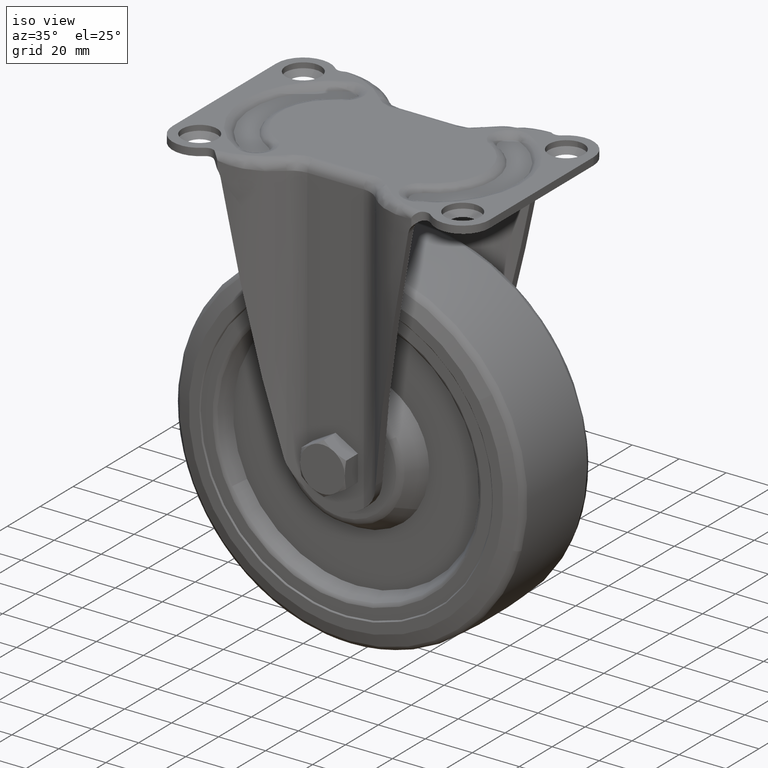
[diagram: clean part render]
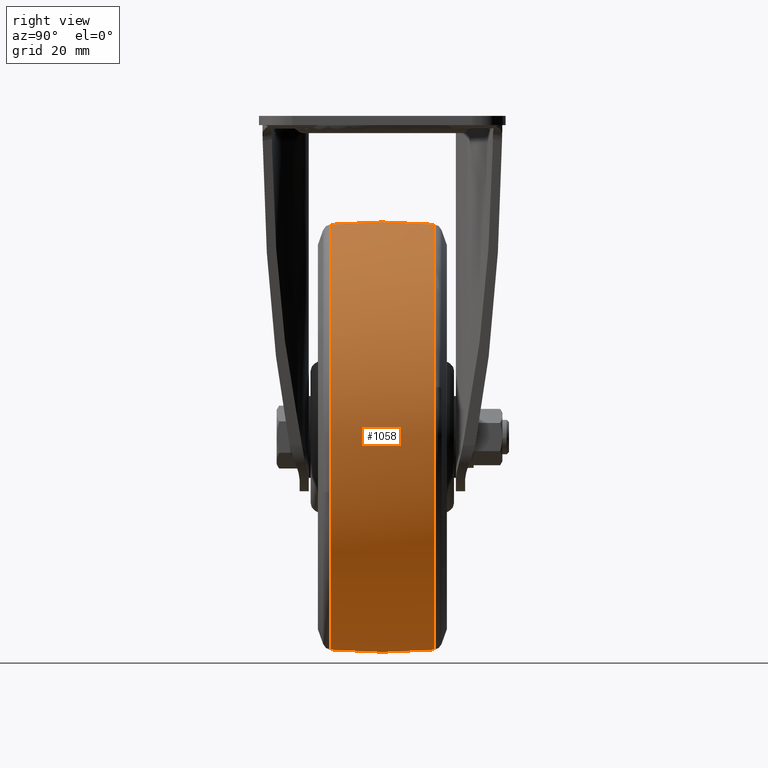
[diagram: tour spotlight — one face highlighted and labeled with its STEP entity id]
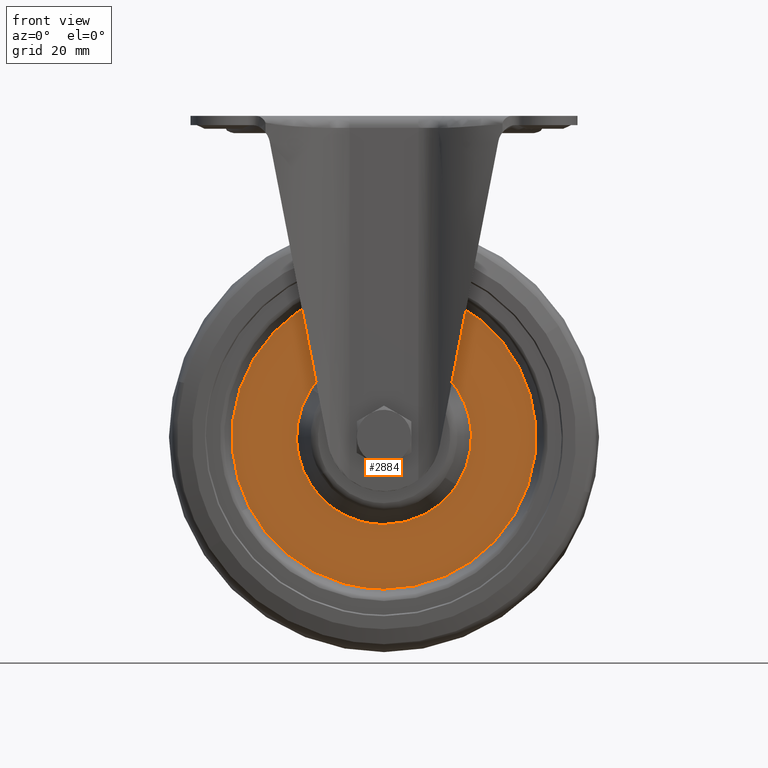
[diagram: tour spotlight — one face highlighted and labeled with its STEP entity id]
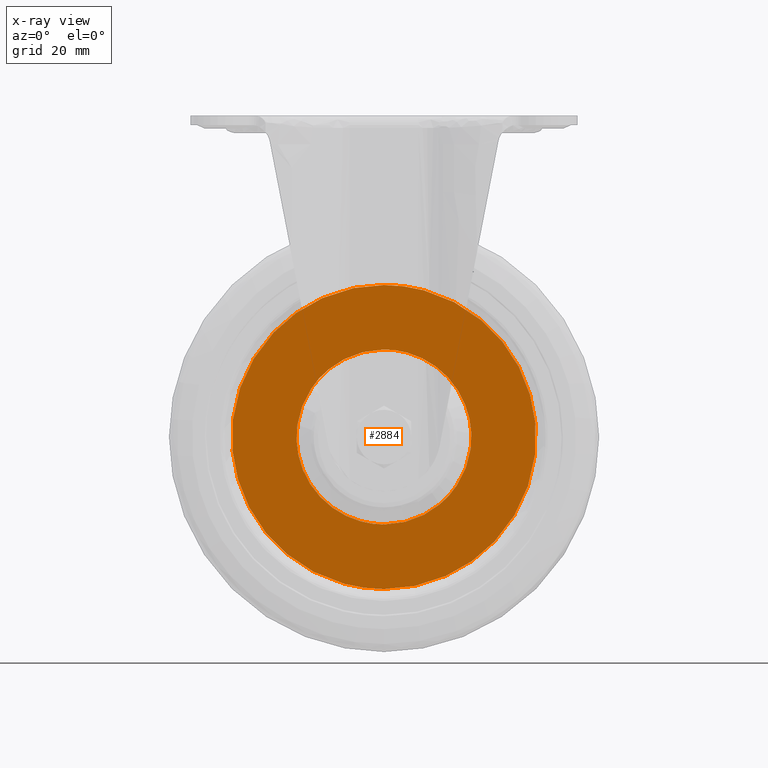
[diagram: x-ray of the same camera — body ghosted, this tour face saturated]
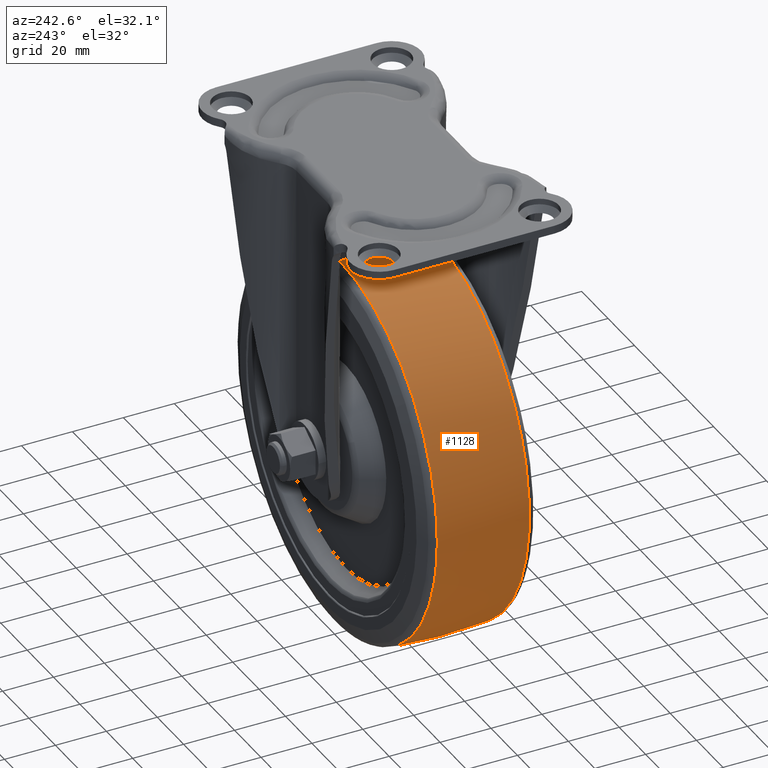
[diagram: tour spotlight — one face highlighted and labeled with its STEP entity id]
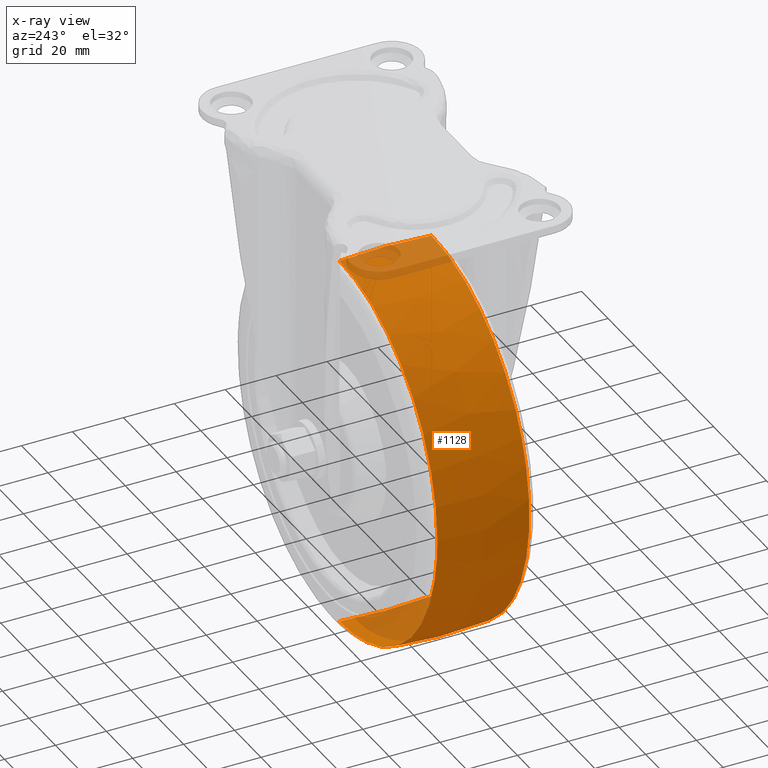
[diagram: x-ray of the same camera — body ghosted, this tour face saturated]
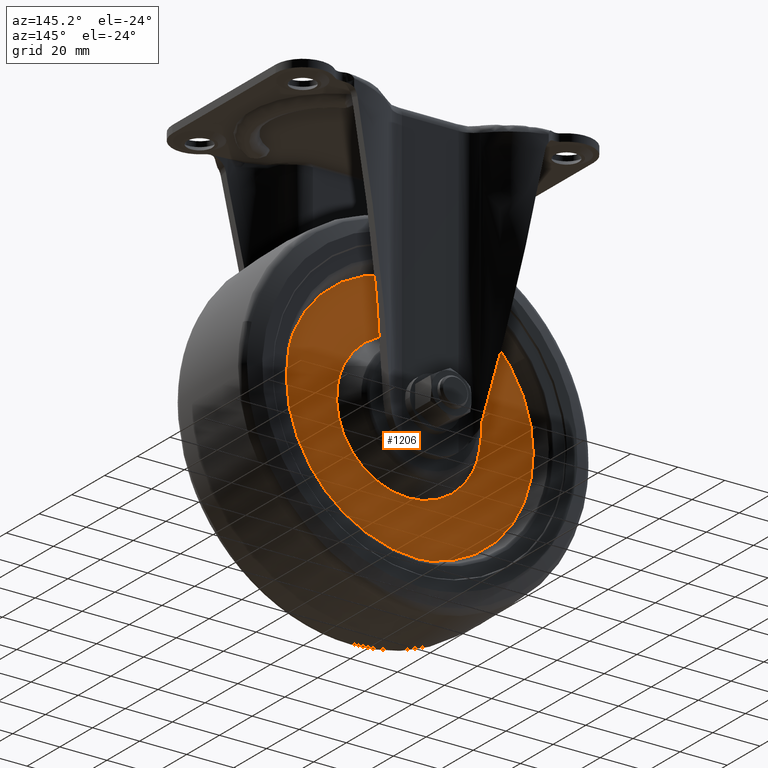
[diagram: tour spotlight — one face highlighted and labeled with its STEP entity id]
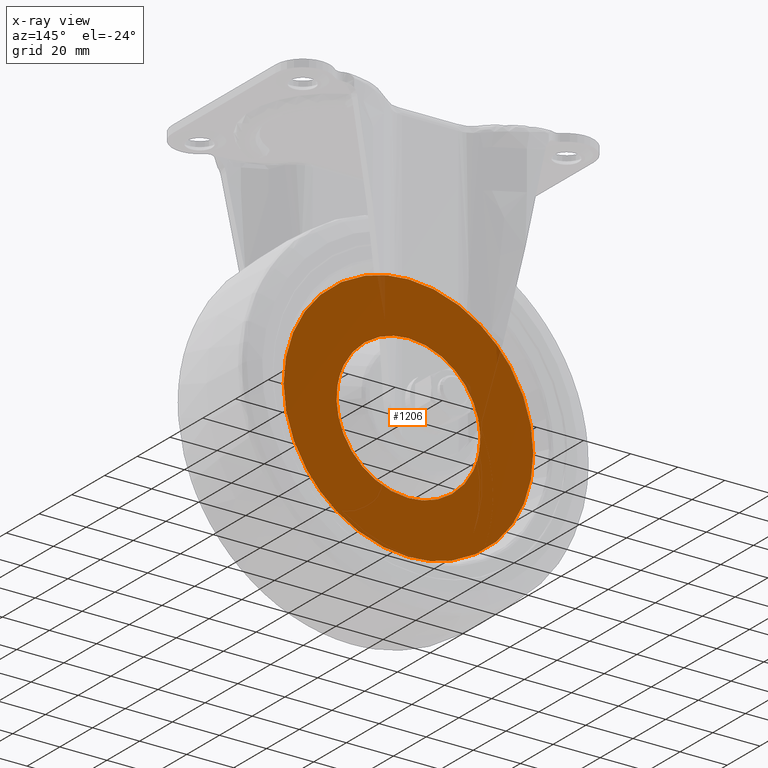
[diagram: x-ray of the same camera — body ghosted, this tour face saturated]
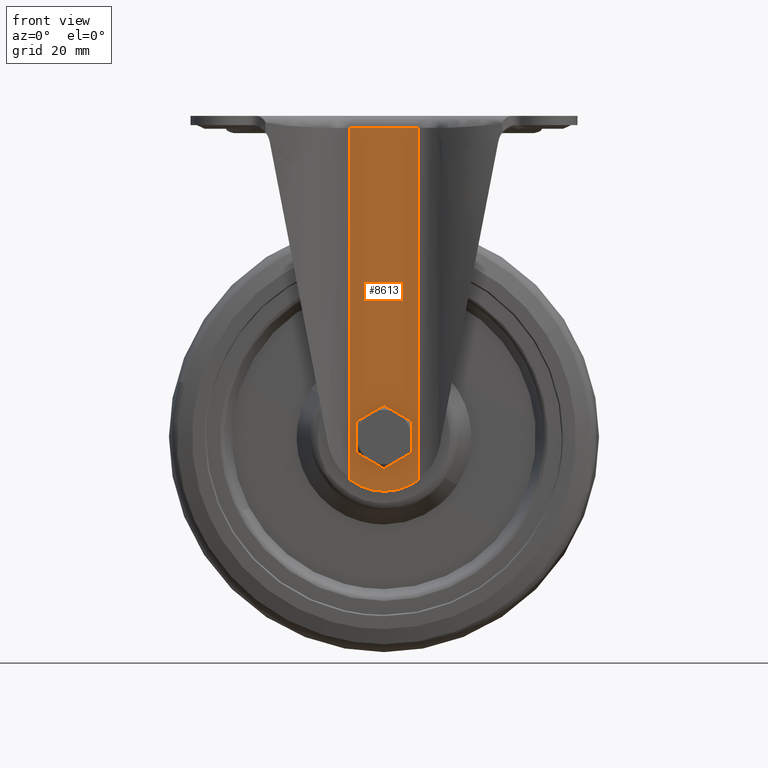
[diagram: tour spotlight — one face highlighted and labeled with its STEP entity id]
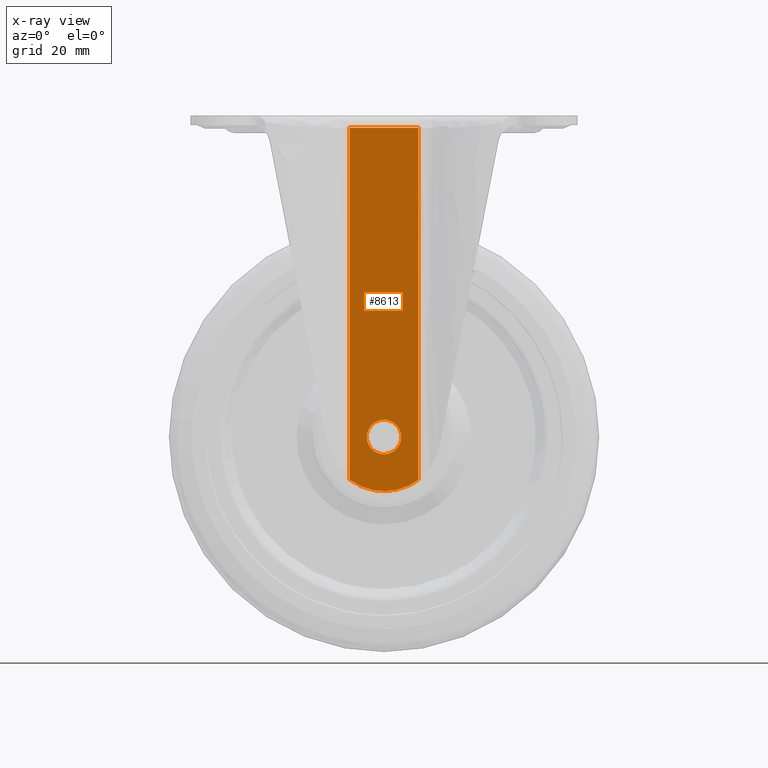
[diagram: x-ray of the same camera — body ghosted, this tour face saturated]
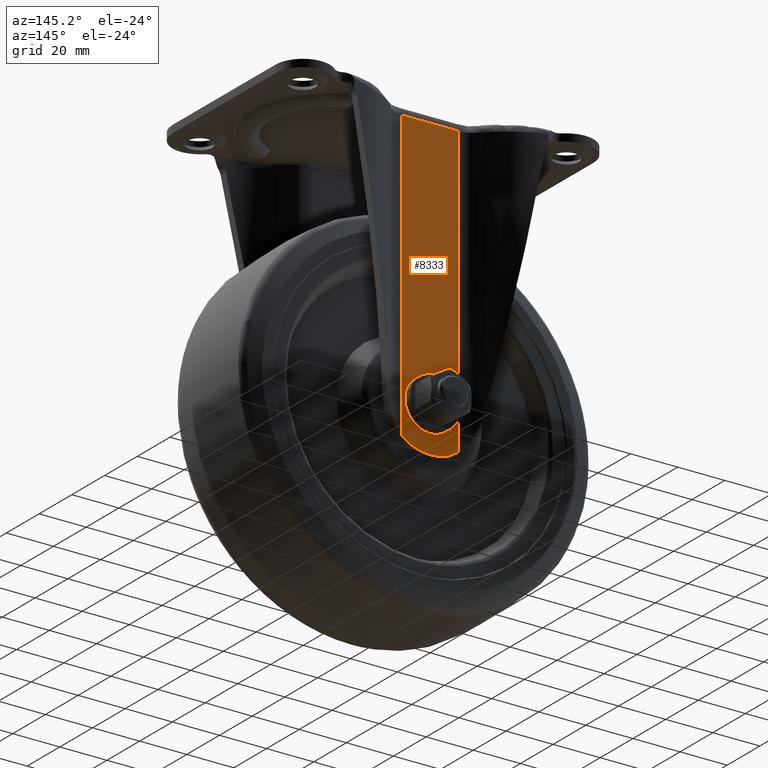
[diagram: tour spotlight — one face highlighted and labeled with its STEP entity id]
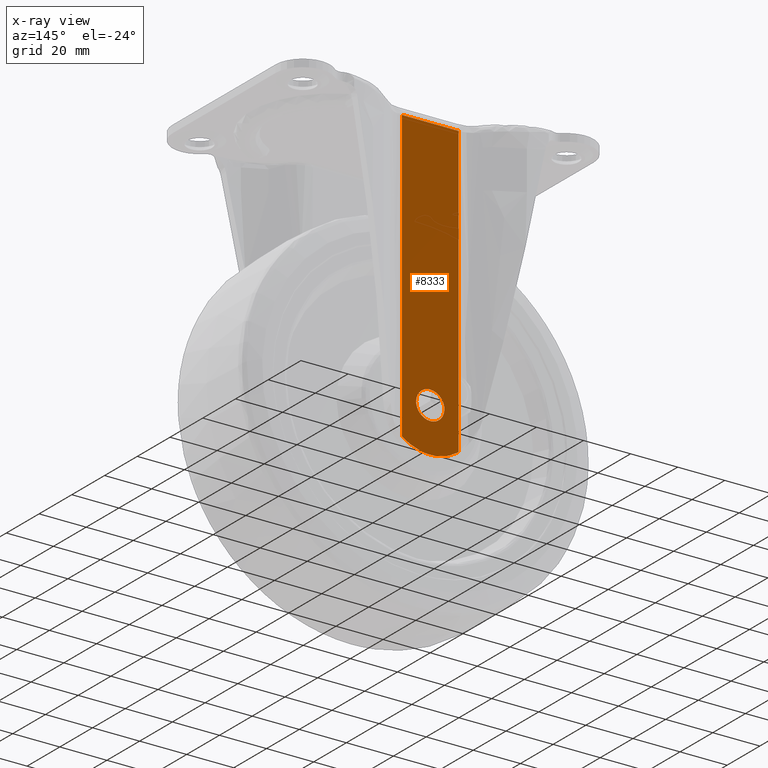
[diagram: x-ray of the same camera — body ghosted, this tour face saturated]
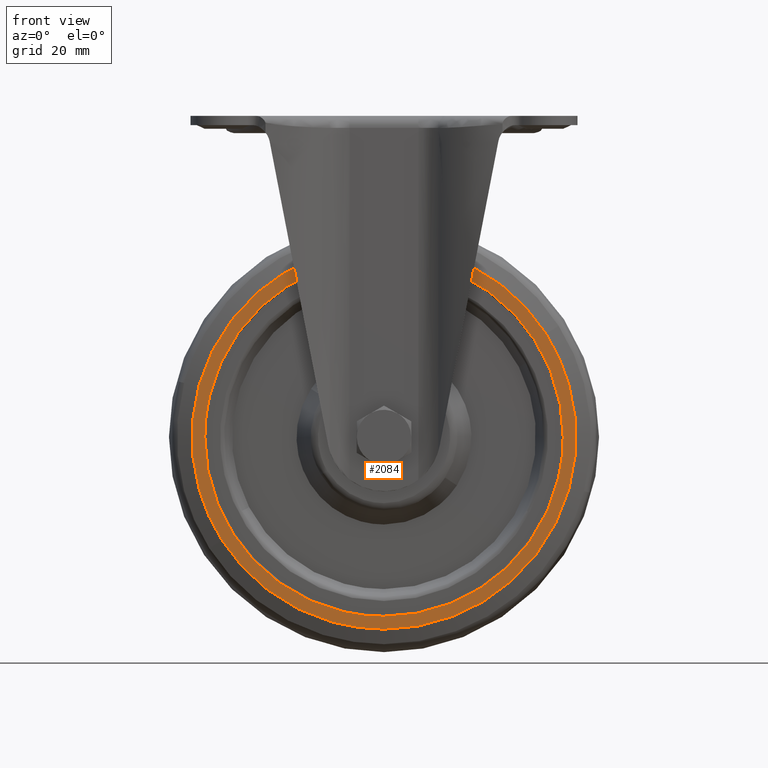
[diagram: tour spotlight — one face highlighted and labeled with its STEP entity id]
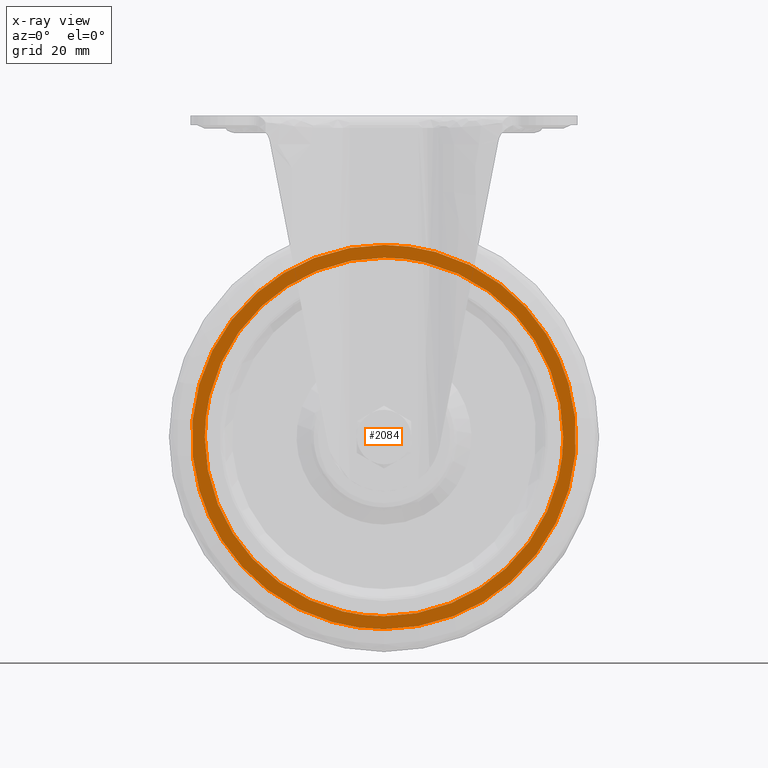
[diagram: x-ray of the same camera — body ghosted, this tour face saturated]
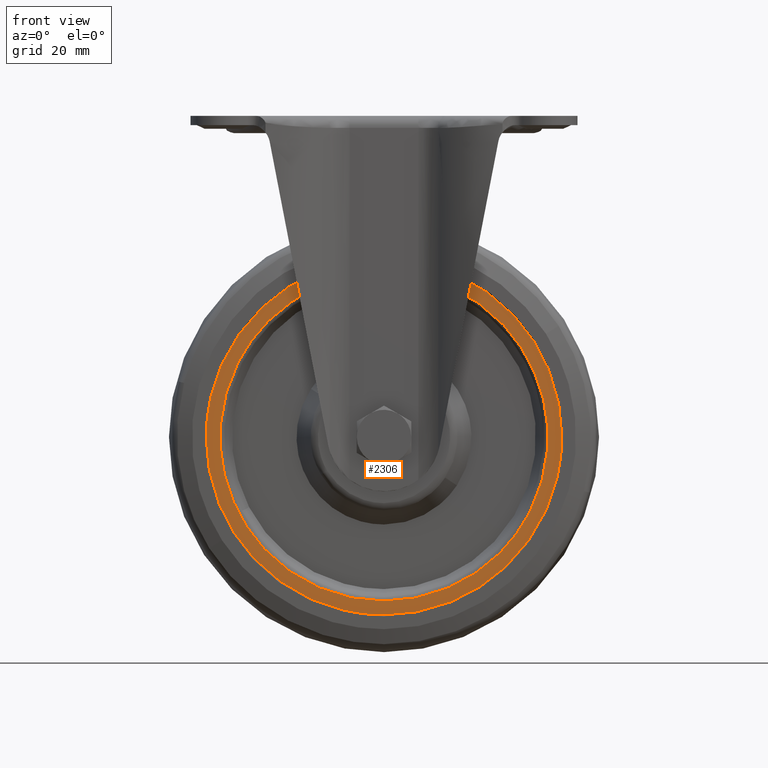
[diagram: tour spotlight — one face highlighted and labeled with its STEP entity id]
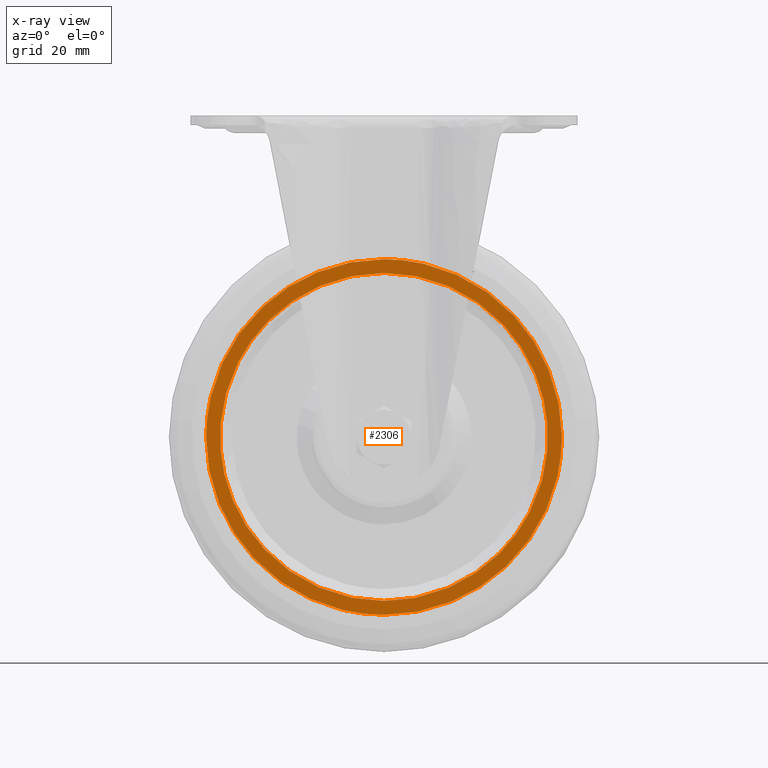
[diagram: x-ray of the same camera — body ghosted, this tour face saturated]
A machine part: a face-by-face anatomy tour. The part has 208 B-rep faces; the first image is the clean iso view, then the 8 largest visible faces are spotlighted one at a time (largest first), each with its STEP entity span.

Face 1 — right view, entity #1058. In plain terms, the highlighted face is a freeform B-spline surface patch.
Definition (entity closure, byte-faithful):
#240=CARTESIAN_POINT('',(72.076043999658012,18.087617736487449,-94.456406539712560));
#241=VERTEX_POINT('',#240);
#242=CARTESIAN_POINT('',(0.0,18.087617544445308,-37.819584066195389));
#243=VERTEX_POINT('',#242);
#244=CARTESIAN_POINT('',(72.076043999658012,18.087617736487445,-94.456406539712560));
#245=CARTESIAN_POINT('',(58.290418497136187,18.087617640449800,-37.819583816930134));
#246=CARTESIAN_POINT('',(0.0,18.087617544445308,-37.819584066195389));
#254=(BOUNDED_CURVE()B_SPLINE_CURVE(2,(#244,#245,#246),.UNSPECIFIED.,.F.,.U.)B_SPLINE_CURVE_WITH_KNOTS((3,3),(0.290401675422591,0.500000000000000),.UNSPECIFIED.)CURVE()GEOMETRIC_REPRESENTATION_ITEM()RATIONAL_B_SPLINE_CURVE((0.920631809824484,0.754440288226464,1.0))REPRESENTATION_ITEM(''));
#255=EDGE_CURVE('',#241,#243,#254,.T.);
#329=CARTESIAN_POINT('',(0.0,18.087617544532119,-186.180415933796700));
#330=VERTEX_POINT('',#329);
#331=CARTESIAN_POINT('',(0.0,18.087617544532119,-186.180415933796700));
#332=CARTESIAN_POINT('',(74.180412235461517,18.087617619971745,-186.180415737926010));
#333=CARTESIAN_POINT('',(74.180413259542348,18.087617715932840,-111.999999554860000));
#334=CARTESIAN_POINT('',(74.180413382381758,18.087617727443462,-103.101992539414400));
#335=CARTESIAN_POINT('',(72.076043999658012,18.087617736487445,-94.456406539712560));
#343=(BOUNDED_CURVE()B_SPLINE_CURVE(2,(#331,#332,#333,#334,#335),.UNSPECIFIED.,.F.,.U.)B_SPLINE_CURVE_WITH_KNOTS((3,2,3),(0.0,0.250000000000000,0.290401675422591),.UNSPECIFIED.)CURVE()GEOMETRIC_REPRESENTATION_ITEM()RATIONAL_B_SPLINE_CURVE((1.0,0.707106781186547,1.0,0.952666492960084,0.920631809824484))REPRESENTATION_ITEM(''));
#344=EDGE_CURVE('',#330,#241,#343,.T.);
#973=CARTESIAN_POINT('',(0.0,-19.906440799314165,-186.006868260126650));
#974=CARTESIAN_POINT('',(0.0,-9.977994056150662,-187.000000000000030));
#975=CARTESIAN_POINT('',(0.0,-2.387982E-015,-187.0));
#976=CARTESIAN_POINT('',(0.0,9.977994056150644,-187.0));
#977=CARTESIAN_POINT('',(0.0,19.906440799314133,-186.006868260126650));
#978=CARTESIAN_POINT('',(74.006868260126652,-19.906440799314165,-186.006868260126790));
#979=CARTESIAN_POINT('',(75.000000000000014,-9.977994056150664,-187.0));
#980=CARTESIAN_POINT('',(75.000000000000014,-2.387982E-015,-187.0));
#981=CARTESIAN_POINT('',(75.000000000000014,9.977994056150644,-187.0));
#982=CARTESIAN_POINT('',(74.006868260126652,19.906440799314133,-186.006868260126790));
#983=CARTESIAN_POINT('',(74.006868260126652,-19.906440799314165,-112.0));
#984=CARTESIAN_POINT('',(75.000000000000014,-9.977994056150662,-111.999999999999970));
#985=CARTESIAN_POINT('',(75.000000000000014,-2.387982E-015,-112.0));
#986=CARTESIAN_POINT('',(75.000000000000014,9.977994056150644,-111.999999999999960));
#987=CARTESIAN_POINT('',(74.006868260126666,19.906440799314133,-111.999999999999990));
#988=CARTESIAN_POINT('',(74.006868260126652,-19.906440799314165,-37.993131739873370));
#989=CARTESIAN_POINT('',(75.000000000000014,-9.977994056150664,-37.0));
#990=CARTESIAN_POINT('',(75.000000000000014,-2.387982E-015,-37.0));
#991=CARTESIAN_POINT('',(75.000000000000014,9.977994056150644,-37.0));
#992=CARTESIAN_POINT('',(74.006868260126652,19.906440799314133,-37.993131739873370));
#993=CARTESIAN_POINT('',(0.0,-19.906440799314165,-37.993131739873355));
#994=CARTESIAN_POINT('',(0.0,-9.977994056150662,-36.999999999999993));
#995=CARTESIAN_POINT('',(0.0,-2.387982E-015,-36.999999999999993));
#996=CARTESIAN_POINT('',(0.0,9.977994056150644,-37.0));
#997=CARTESIAN_POINT('',(0.0,19.906440799314133,-37.993131739873348));
#1005=(BOUNDED_SURFACE()B_SPLINE_SURFACE(2,2,((#973,#978,#983,#988,#993),(#974,#979,#984,#989,#994),(#975,#980,#985,#990,#995),(#976,#981,#986,#991,#996),(#977,#982,#987,#992,#997)),.UNSPECIFIED.,.F.,.F.,.U.)B_SPLINE_SURFACE_WITH_KNOTS((3,2,3),(3,2,3),(0.0,20.132611732855729,40.265223465711443),(0.0,124.264068711928600,248.528137423857090),.UNSPECIFIED.)GEOMETRIC_REPRESENTATION_ITEM()RATIONAL_B_SPLINE_SURFACE(((0.980091487415173,0.693029336934479,0.980091487415173,0.693029336934479,0.980091487415173),(0.988765941719699,0.699163102396302,0.988765941719699,0.699163102396302,0.988765941719699),(1.0,0.707106781186548,1.0,0.707106781186548,1.0),(0.988765941719699,0.699163102396302,0.988765941719699,0.699163102396302,0.988765941719699),(0.980091487415173,0.693029336934479,0.980091487415173,0.693029336934479,0.980091487415173)))REPRESENTATION_ITEM('')SURFACE());
#1006=CARTESIAN_POINT('',(0.0,-18.087612763674962,-186.180416367946090));
#1007=VERTEX_POINT('',#1006);
#1008=CARTESIAN_POINT('',(0.0,-18.087612763674962,-186.180416367946090));
#1009=CARTESIAN_POINT('',(0.0,-6.062197638210799,-187.272979634737000));
#1010=CARTESIAN_POINT('',(0.0,6.062204415974567,-187.273365152343500));
#1011=CARTESIAN_POINT('',(0.0,18.087617544532119,-186.180415933796700));
#1012=B_SPLINE_CURVE_WITH_KNOTS('',3,(#1008,#1009,#1010,#1011),.UNSPECIFIED.,.F.,.U.,(4,4),(-5.757698E-009,36.224737928815031),.UNSPECIFIED.);
#1013=EDGE_CURVE('',#1007,#330,#1012,.T.);
#1014=ORIENTED_EDGE('',*,*,#1013,.T.);
#1015=ORIENTED_EDGE('',*,*,#344,.T.);
#1016=ORIENTED_EDGE('',*,*,#255,.T.);
#1017=CARTESIAN_POINT('',(0.0,-18.087612763580299,-37.819583632045308));
#1018=VERTEX_POINT('',#1017);
#1019=CARTESIAN_POINT('',(0.0,-18.087612763580299,-37.819583632045308));
#1020=CARTESIAN_POINT('',(0.0,-6.062198376635363,-36.727019706875247));
#1021=CARTESIAN_POINT('',(0.0,6.062205097034826,-36.726641484415602));
#1022=CARTESIAN_POINT('',(0.0,18.087617544445308,-37.819584066195389));
#1023=B_SPLINE_CURVE_WITH_KNOTS('',3,(#1019,#1020,#1021,#1022),.UNSPECIFIED.,.F.,.U.,(4,4),(-5.760455E-009,36.224737928632813),.UNSPECIFIED.);
#1024=EDGE_CURVE('',#1018,#243,#1023,.T.);
#1025=ORIENTED_EDGE('',*,*,#1024,.F.);
#1026=CARTESIAN_POINT('',(71.612409683175898,-18.087612971436538,-131.349330937558190));
#1027=VERTEX_POINT('',#1026);
#1028=CARTESIAN_POINT('',(71.612409683175898,-18.087612971436545,-131.349330937558250));
#1029=CARTESIAN_POINT('',(74.180413521388985,-18.087612960872594,-121.845075901437340));
#1030=CARTESIAN_POINT('',(74.180413375229875,-18.087612947077151,-112.000000525385800));
#1031=CARTESIAN_POINT('',(74.180412273954175,-18.087612843131527,-37.819583859875969));
#1032=CARTESIAN_POINT('',(0.0,-18.087612763580299,-37.819583632045308));
#1040=(BOUNDED_CURVE()B_SPLINE_CURVE(2,(#1028,#1029,#1030,#1031,#1032),.UNSPECIFIED.,.F.,.U.)B_SPLINE_CURVE_WITH_KNOTS((3,2,3),(0.205522210379714,0.250000000000000,0.500000000000000),.UNSPECIFIED.)CURVE()GEOMETRIC_REPRESENTATION_ITEM()RATIONAL_B_SPLINE_CURVE((0.914323591364694,0.947891028129628,1.0,0.707106781186547,1.0))REPRESENTATION_ITEM(''));
#1041=EDGE_CURVE('',#1027,#1018,#1040,.T.);
#1042=ORIENTED_EDGE('',*,*,#1041,.F.);
#1043=CARTESIAN_POINT('',(0.0,-18.087612763674962,-186.180416367946090));
#1044=CARTESIAN_POINT('',(56.797313088796464,-18.087612867573249,-186.180416665505500));
#1045=CARTESIAN_POINT('',(71.612409683175898,-18.087612971436545,-131.349330937558250));
#1053=(BOUNDED_CURVE()B_SPLINE_CURVE(2,(#1043,#1044,#1045),.UNSPECIFIED.,.F.,.U.)B_SPLINE_CURVE_WITH_KNOTS((3,3),(0.0,0.205522210379714),.UNSPECIFIED.)CURVE()GEOMETRIC_REPRESENTATION_ITEM()RATIONAL_B_SPLINE_CURVE((1.0,0.759215753056919,0.914323591364694))REPRESENTATION_ITEM(''));
#1054=EDGE_CURVE('',#1007,#1027,#1053,.T.);
#1055=ORIENTED_EDGE('',*,*,#1054,.F.);
#1056=EDGE_LOOP('',(#1014,#1015,#1016,#1025,#1042,#1055));
#1057=FACE_OUTER_BOUND('',#1056,.T.);
#1058=ADVANCED_FACE('',(#1057),#1005,.T.);

Face 2 — front view, entity #2884. An x-ray twin of the same camera follows (body ghosted, this face saturated) — the face is partly hidden behind the body. In plain terms, the highlighted face is a freeform B-spline surface patch.
Definition (entity closure, byte-faithful):
#2582=CARTESIAN_POINT('',(-47.021429735812390,-15.500000000000259,-136.477806990300310));
#2583=VERTEX_POINT('',#2582);
#2589=CARTESIAN_POINT('',(0.0,-15.500000000000000,-58.988889000000000));
#2590=VERTEX_POINT('',#2589);
#2591=CARTESIAN_POINT('',(0.0,-15.500000000000000,-58.988889000000000));
#2592=CARTESIAN_POINT('',(-53.011110999999993,-15.500000000000004,-58.988889000000007));
#2593=CARTESIAN_POINT('',(-53.011111000000000,-15.500000000000000,-112.0));
#2594=CARTESIAN_POINT('',(-53.011111000000000,-15.500000000000004,-124.971736335542600));
#2595=CARTESIAN_POINT('',(-47.021429735812283,-15.500000000000002,-136.477806990300220));
#2603=(BOUNDED_CURVE()B_SPLINE_CURVE(2,(#2591,#2592,#2593,#2594,#2595),.UNSPECIFIED.,.F.,.U.)B_SPLINE_CURVE_WITH_KNOTS((3,2,3),(0.500000000000000,0.750000000000000,0.828552124121067),.UNSPECIFIED.)CURVE()GEOMETRIC_REPRESENTATION_ITEM()RATIONAL_B_SPLINE_CURVE((1.0,0.707106781186548,1.0,0.907970462086187,0.873773849652457))REPRESENTATION_ITEM(''));
#2604=EDGE_CURVE('',#2590,#2583,#2603,.T.);
#2606=CARTESIAN_POINT('',(47.021429735812397,-15.500000000000259,-87.522193009699748));
#2607=VERTEX_POINT('',#2606);
#2608=CARTESIAN_POINT('',(47.021429735812283,-15.499999999999996,-87.522193009699805));
#2609=CARTESIAN_POINT('',(32.167931824985189,-15.500000000000000,-58.988889000000007));
#2610=CARTESIAN_POINT('',(0.0,-15.500000000000000,-58.988889000000000));
#2618=(BOUNDED_CURVE()B_SPLINE_CURVE(2,(#2608,#2609,#2610),.UNSPECIFIED.,.F.,.U.)B_SPLINE_CURVE_WITH_KNOTS((3,3),(0.328552124121067,0.500000000000000),.UNSPECIFIED.)CURVE()GEOMETRIC_REPRESENTATION_ITEM()RATIONAL_B_SPLINE_CURVE((0.873773849652457,0.799136319100360,1.0))REPRESENTATION_ITEM(''));
#2619=EDGE_CURVE('',#2607,#2590,#2618,.T.);
#2649=CARTESIAN_POINT('',(0.0,-15.500000000000000,-165.011111000000000));
#2650=VERTEX_POINT('',#2649);
#2651=CARTESIAN_POINT('',(0.0,-15.500000000000000,-165.011111000000000));
#2652=CARTESIAN_POINT('',(53.011110999999993,-15.500000000000004,-165.011110999999970));
#2653=CARTESIAN_POINT('',(53.011111000000000,-15.500000000000000,-112.0));
#2654=CARTESIAN_POINT('',(53.011110999999993,-15.500000000000002,-99.028263664457441));
#2655=CARTESIAN_POINT('',(47.021429735812283,-15.499999999999996,-87.522193009699805));
#2663=(BOUNDED_CURVE()B_SPLINE_CURVE(2,(#2651,#2652,#2653,#2654,#2655),.UNSPECIFIED.,.F.,.U.)B_SPLINE_CURVE_WITH_KNOTS((3,2,3),(0.0,0.250000000000000,0.328552124121067),.UNSPECIFIED.)CURVE()GEOMETRIC_REPRESENTATION_ITEM()RATIONAL_B_SPLINE_CURVE((1.0,0.707106781186548,1.0,0.907970462086188,0.873773849652457))REPRESENTATION_ITEM(''));
#2664=EDGE_CURVE('',#2650,#2607,#2663,.T.);
#2666=CARTESIAN_POINT('',(-47.021429735812283,-15.500000000000002,-136.477806990300220));
#2667=CARTESIAN_POINT('',(-32.167931824985175,-15.499999999999998,-165.011110999999940));
#2668=CARTESIAN_POINT('',(0.0,-15.500000000000000,-165.011111000000000));
#2676=(BOUNDED_CURVE()B_SPLINE_CURVE(2,(#2666,#2667,#2668),.UNSPECIFIED.,.F.,.U.)B_SPLINE_CURVE_WITH_KNOTS((3,3),(0.828552124121067,1.0),.UNSPECIFIED.)CURVE()GEOMETRIC_REPRESENTATION_ITEM()RATIONAL_B_SPLINE_CURVE((0.873773849652457,0.799136319100360,1.0))REPRESENTATION_ITEM(''));
#2677=EDGE_CURVE('',#2583,#2650,#2676,.T.);
#2807=CARTESIAN_POINT('',(-58.306859032736412,-15.500000000000000,-170.306920783408400));
#2808=CARTESIAN_POINT('',(-58.306859032736412,-15.500000000000000,-53.693076372854051));
#2809=CARTESIAN_POINT('',(58.306857136911347,-15.500000000000000,-170.306920783408400));
#2810=CARTESIAN_POINT('',(58.306857136911347,-15.500000000000000,-53.693076372854051));
#2811=B_SPLINE_SURFACE_WITH_KNOTS('',1,1,((#2807,#2809),(#2808,#2810)),.UNSPECIFIED.,.F.,.F.,.U.,(2,2),(2,2),(0.0,116.613844410554290),(0.0,116.613716169647800),.UNSPECIFIED.);
#2812=ORIENTED_EDGE('',*,*,#2664,.T.);
#2813=ORIENTED_EDGE('',*,*,#2619,.T.);
#2814=ORIENTED_EDGE('',*,*,#2604,.T.);
#2815=ORIENTED_EDGE('',*,*,#2677,.T.);
#2816=EDGE_LOOP('',(#2812,#2813,#2814,#2815));
#2817=FACE_OUTER_BOUND('',#2816,.T.);
#2818=CARTESIAN_POINT('',(0.0,-15.500000000000000,-81.500000000000000));
#2819=VERTEX_POINT('',#2818);
#2820=CARTESIAN_POINT('',(-25.433517573013830,-15.499999999994630,-95.165921947923763));
#2821=VERTEX_POINT('',#2820);
#2822=CARTESIAN_POINT('',(0.0,-15.500000000000000,-81.500000000000000));
#2823=CARTESIAN_POINT('',(-16.388241155209464,-15.499999999997319,-81.499999999999105));
#2824=CARTESIAN_POINT('',(-25.433517573013827,-15.499999999994635,-95.165921947923749));
#2832=(BOUNDED_CURVE()B_SPLINE_CURVE(2,(#2822,#2823,#2824),.UNSPECIFIED.,.F.,.U.)B_SPLINE_CURVE_WITH_KNOTS((3,3),(0.500000000000000,0.655387315363787),.UNSPECIFIED.)CURVE()GEOMETRIC_REPRESENTATION_ITEM()RATIONAL_B_SPLINE_CURVE((1.0,0.817952436161278,0.862207930029889))REPRESENTATION_ITEM(''));
#2833=EDGE_CURVE('',#2819,#2821,#2832,.T.);
#2834=ORIENTED_EDGE('',*,*,#2833,.F.);
#2835=CARTESIAN_POINT('',(25.433517573013852,-15.499999999994630,-128.834078052076190));
#2836=VERTEX_POINT('',#2835);
#2837=CARTESIAN_POINT('',(25.433517573013848,-15.499999999994634,-128.834078052076250));
#2838=CARTESIAN_POINT('',(30.500000000002498,-15.499999999995067,-121.179458093586870));
#2839=CARTESIAN_POINT('',(30.500000000002089,-15.499999999995870,-112.000000000001410));
#2840=CARTESIAN_POINT('',(30.500000000000725,-15.499999999998565,-81.500000000000469));
#2841=CARTESIAN_POINT('',(0.0,-15.500000000000000,-81.500000000000000));
#2849=(BOUNDED_CURVE()B_SPLINE_CURVE(2,(#2837,#2838,#2839,#2840,#2841),.UNSPECIFIED.,.F.,.U.)B_SPLINE_CURVE_WITH_KNOTS((3,2,3),(0.155387315363787,0.250000000000000,0.500000000000000),.UNSPECIFIED.)CURVE()GEOMETRIC_REPRESENTATION_ITEM()RATIONAL_B_SPLINE_CURVE((0.862207930029889,0.889154345025270,1.0,0.707106781186547,1.0))REPRESENTATION_ITEM(''));
#2850=EDGE_CURVE('',#2836,#2819,#2849,.T.);
#2851=ORIENTED_EDGE('',*,*,#2850,.F.);
#2852=CARTESIAN_POINT('',(0.0,-15.500000000000000,-142.500000000000000));
#2853=VERTEX_POINT('',#2852);
#2854=CARTESIAN_POINT('',(0.0,-15.500000000000000,-142.500000000000000));
#2855=CARTESIAN_POINT('',(16.388241155209482,-15.499999999997311,-142.500000000000940));
#2856=CARTESIAN_POINT('',(25.433517573013848,-15.499999999994634,-128.834078052076250));
#2864=(BOUNDED_CURVE()B_SPLINE_CURVE(2,(#2854,#2855,#2856),.UNSPECIFIED.,.F.,.U.)B_SPLINE_CURVE_WITH_KNOTS((3,3),(0.0,0.155387315363787),.UNSPECIFIED.)CURVE()GEOMETRIC_REPRESENTATION_ITEM()RATIONAL_B_SPLINE_CURVE((1.0,0.817952436161277,0.862207930029889))REPRESENTATION_ITEM(''));
#2865=EDGE_CURVE('',#2853,#2836,#2864,.T.);
#2866=ORIENTED_EDGE('',*,*,#2865,.F.);
#2867=CARTESIAN_POINT('',(-25.433517573013827,-15.499999999994635,-95.165921947923749));
#2868=CARTESIAN_POINT('',(-30.500000000002483,-15.499999999995071,-102.820541906413080));
#2869=CARTESIAN_POINT('',(-30.500000000002078,-15.499999999995870,-111.999999999998590));
#2870=CARTESIAN_POINT('',(-30.500000000000725,-15.499999999998565,-142.499999999999550));
#2871=CARTESIAN_POINT('',(0.0,-15.500000000000000,-142.500000000000000));
#2879=(BOUNDED_CURVE()B_SPLINE_CURVE(2,(#2867,#2868,#2869,#2870,#2871),.UNSPECIFIED.,.F.,.U.)B_SPLINE_CURVE_WITH_KNOTS((3,2,3),(0.655387315363787,0.750000000000000,1.0),.UNSPECIFIED.)CURVE()GEOMETRIC_REPRESENTATION_ITEM()RATIONAL_B_SPLINE_CURVE((0.862207930029889,0.889154345025270,1.0,0.707106781186547,1.0))REPRESENTATION_ITEM(''));
#2880=EDGE_CURVE('',#2821,#2853,#2879,.T.);
#2881=ORIENTED_EDGE('',*,*,#2880,.F.);
#2882=EDGE_LOOP('',(#2834,#2851,#2866,#2881));
#2883=FACE_BOUND('',#2882,.T.);
#2884=ADVANCED_FACE('',(#2817,#2883),#2811,.F.);

Face 3 — auxiliary view, entity #1128. An x-ray twin of the same camera follows (body ghosted, this face saturated) — the face is partly hidden behind the body. In plain terms, the highlighted face is a freeform B-spline surface patch.
Definition (entity closure, byte-faithful):
#242=CARTESIAN_POINT('',(0.0,18.087617544445308,-37.819584066195389));
#243=VERTEX_POINT('',#242);
#273=CARTESIAN_POINT('',(-72.076043999656207,18.087617736507990,-129.543593460287010));
#274=VERTEX_POINT('',#273);
#288=CARTESIAN_POINT('',(0.0,18.087617544445308,-37.819584066195389));
#289=CARTESIAN_POINT('',(-74.180412235461517,18.087617619884924,-37.819584262066172));
#290=CARTESIAN_POINT('',(-74.180413259542362,18.087617715932840,-112.000000445132100));
#291=CARTESIAN_POINT('',(-74.180413382381772,18.087617727453882,-120.898007460581580));
#292=CARTESIAN_POINT('',(-72.076043999656207,18.087617736507990,-129.543593460287010));
#300=(BOUNDED_CURVE()B_SPLINE_CURVE(2,(#288,#289,#290,#291,#292),.UNSPECIFIED.,.F.,.U.)B_SPLINE_CURVE_WITH_KNOTS((3,2,3),(0.500000000000000,0.750000000000000,0.790401675422608),.UNSPECIFIED.)CURVE()GEOMETRIC_REPRESENTATION_ITEM()RATIONAL_B_SPLINE_CURVE((1.0,0.707106781186547,1.0,0.952666492960064,0.920631809824458))REPRESENTATION_ITEM(''));
#301=EDGE_CURVE('',#243,#274,#300,.T.);
#329=CARTESIAN_POINT('',(0.0,18.087617544532119,-186.180415933796700));
#330=VERTEX_POINT('',#329);
#346=CARTESIAN_POINT('',(-72.076043999656207,18.087617736507990,-129.543593460287010));
#347=CARTESIAN_POINT('',(-58.290418497130013,18.087617640536624,-186.180416183061910));
#348=CARTESIAN_POINT('',(0.0,18.087617544532119,-186.180415933796700));
#356=(BOUNDED_CURVE()B_SPLINE_CURVE(2,(#346,#347,#348),.UNSPECIFIED.,.F.,.U.)B_SPLINE_CURVE_WITH_KNOTS((3,3),(0.790401675422608,1.0),.UNSPECIFIED.)CURVE()GEOMETRIC_REPRESENTATION_ITEM()RATIONAL_B_SPLINE_CURVE((0.920631809824458,0.754440288226484,1.0))REPRESENTATION_ITEM(''));
#357=EDGE_CURVE('',#274,#330,#356,.T.);
#1006=CARTESIAN_POINT('',(0.0,-18.087612763674962,-186.180416367946090));
#1007=VERTEX_POINT('',#1006);
#1008=CARTESIAN_POINT('',(0.0,-18.087612763674962,-186.180416367946090));
#1009=CARTESIAN_POINT('',(0.0,-6.062197638210799,-187.272979634737000));
#1010=CARTESIAN_POINT('',(0.0,6.062204415974567,-187.273365152343500));
#1011=CARTESIAN_POINT('',(0.0,18.087617544532119,-186.180415933796700));
#1012=B_SPLINE_CURVE_WITH_KNOTS('',3,(#1008,#1009,#1010,#1011),.UNSPECIFIED.,.F.,.U.,(4,4),(-5.757698E-009,36.224737928815031),.UNSPECIFIED.);
#1013=EDGE_CURVE('',#1007,#330,#1012,.T.);
#1017=CARTESIAN_POINT('',(0.0,-18.087612763580299,-37.819583632045308));
#1018=VERTEX_POINT('',#1017);
#1019=CARTESIAN_POINT('',(0.0,-18.087612763580299,-37.819583632045308));
#1020=CARTESIAN_POINT('',(0.0,-6.062198376635363,-36.727019706875247));
#1021=CARTESIAN_POINT('',(0.0,6.062205097034826,-36.726641484415602));
#1022=CARTESIAN_POINT('',(0.0,18.087617544445308,-37.819584066195389));
#1023=B_SPLINE_CURVE_WITH_KNOTS('',3,(#1019,#1020,#1021,#1022),.UNSPECIFIED.,.F.,.U.,(4,4),(-5.760455E-009,36.224737928632813),.UNSPECIFIED.);
#1024=EDGE_CURVE('',#1018,#243,#1023,.T.);
#1059=CARTESIAN_POINT('',(0.0,-19.906440799314165,-37.993131739873355));
#1060=CARTESIAN_POINT('',(0.0,-9.977994056150662,-36.999999999999993));
#1061=CARTESIAN_POINT('',(0.0,-2.387982E-015,-36.999999999999993));
#1062=CARTESIAN_POINT('',(0.0,9.977994056150644,-37.0));
#1063=CARTESIAN_POINT('',(0.0,19.906440799314133,-37.993131739873348));
#1064=CARTESIAN_POINT('',(-74.006868260126652,-19.906440799314165,-37.993131739873370));
#1065=CARTESIAN_POINT('',(-75.000000000000014,-9.977994056150664,-37.0));
#1066=CARTESIAN_POINT('',(-75.000000000000014,-2.387982E-015,-37.0));
#1067=CARTESIAN_POINT('',(-75.000000000000014,9.977994056150644,-37.0));
#1068=CARTESIAN_POINT('',(-74.006868260126652,19.906440799314133,-37.993131739873370));
#1069=CARTESIAN_POINT('',(-74.006868260126652,-19.906440799314165,-112.0));
#1070=CARTESIAN_POINT('',(-75.000000000000014,-9.977994056150662,-111.999999999999970));
#1071=CARTESIAN_POINT('',(-75.000000000000014,-2.387982E-015,-112.0));
#1072=CARTESIAN_POINT('',(-75.000000000000014,9.977994056150644,-111.999999999999960));
#1073=CARTESIAN_POINT('',(-74.006868260126666,19.906440799314133,-111.999999999999990));
#1074=CARTESIAN_POINT('',(-74.006868260126652,-19.906440799314165,-186.006868260126790));
#1075=CARTESIAN_POINT('',(-75.000000000000014,-9.977994056150664,-187.0));
#1076=CARTESIAN_POINT('',(-75.000000000000014,-2.387982E-015,-187.0));
#1077=CARTESIAN_POINT('',(-75.000000000000014,9.977994056150644,-187.0));
#1078=CARTESIAN_POINT('',(-74.006868260126652,19.906440799314133,-186.006868260126790));
#1079=CARTESIAN_POINT('',(0.0,-19.906440799314165,-186.006868260126650));
#1080=CARTESIAN_POINT('',(0.0,-9.977994056150662,-187.000000000000030));
#1081=CARTESIAN_POINT('',(0.0,-2.387982E-015,-187.0));
#1082=CARTESIAN_POINT('',(0.0,9.977994056150644,-187.0));
#1083=CARTESIAN_POINT('',(0.0,19.906440799314133,-186.006868260126650));
#1091=(BOUNDED_SURFACE()B_SPLINE_SURFACE(2,2,((#1059,#1064,#1069,#1074,#1079),(#1060,#1065,#1070,#1075,#1080),(#1061,#1066,#1071,#1076,#1081),(#1062,#1067,#1072,#1077,#1082),(#1063,#1068,#1073,#1078,#1083)),.UNSPECIFIED.,.F.,.F.,.U.)B_SPLINE_SURFACE_WITH_KNOTS((3,2,3),(3,2,3),(0.0,20.132611732855729,40.265223465711443),(0.0,124.264068711928600,248.528137423857090),.UNSPECIFIED.)GEOMETRIC_REPRESENTATION_ITEM()RATIONAL_B_SPLINE_SURFACE(((0.980091487415173,0.693029336934479,0.980091487415173,0.693029336934479,0.980091487415173),(0.988765941719699,0.699163102396302,0.988765941719699,0.699163102396302,0.988765941719699),(1.0,0.707106781186548,1.0,0.707106781186548,1.0),(0.988765941719699,0.699163102396302,0.988765941719699,0.699163102396302,0.988765941719699),(0.980091487415173,0.693029336934479,0.980091487415173,0.693029336934479,0.980091487415173)))REPRESENTATION_ITEM('')SURFACE());
#1092=ORIENTED_EDGE('',*,*,#1013,.F.);
#1093=CARTESIAN_POINT('',(-71.612409683178072,-18.087612971411851,-92.650669062441182));
#1094=VERTEX_POINT('',#1093);
#1095=CARTESIAN_POINT('',(-71.612409683178058,-18.087612971411851,-92.650669062441182));
#1096=CARTESIAN_POINT('',(-74.180413521389013,-18.087612960860046,-102.154924098558350));
#1097=CARTESIAN_POINT('',(-74.180413375229904,-18.087612947077140,-111.999999474605700));
#1098=CARTESIAN_POINT('',(-74.180412273954175,-18.087612843226179,-186.180416140115480));
#1099=CARTESIAN_POINT('',(0.0,-18.087612763674962,-186.180416367946090));
#1107=(BOUNDED_CURVE()B_SPLINE_CURVE(2,(#1095,#1096,#1097,#1098,#1099),.UNSPECIFIED.,.F.,.U.)B_SPLINE_CURVE_WITH_KNOTS((3,2,3),(0.705522210379732,0.750000000000000,1.0),.UNSPECIFIED.)CURVE()GEOMETRIC_REPRESENTATION_ITEM()RATIONAL_B_SPLINE_CURVE((0.914323591364721,0.947891028129649,1.0,0.707106781186547,1.0))REPRESENTATION_ITEM(''));
#1108=EDGE_CURVE('',#1094,#1007,#1107,.T.);
#1109=ORIENTED_EDGE('',*,*,#1108,.F.);
#1110=CARTESIAN_POINT('',(0.0,-18.087612763580299,-37.819583632045308));
#1111=CARTESIAN_POINT('',(-56.797313088803008,-18.087612867478569,-37.819583334485941));
#1112=CARTESIAN_POINT('',(-71.612409683178058,-18.087612971411851,-92.650669062441182));
#1120=(BOUNDED_CURVE()B_SPLINE_CURVE(2,(#1110,#1111,#1112),.UNSPECIFIED.,.F.,.U.)B_SPLINE_CURVE_WITH_KNOTS((3,3),(0.500000000000000,0.705522210379732),.UNSPECIFIED.)CURVE()GEOMETRIC_REPRESENTATION_ITEM()RATIONAL_B_SPLINE_CURVE((1.0,0.759215753056898,0.914323591364721))REPRESENTATION_ITEM(''));
#1121=EDGE_CURVE('',#1018,#1094,#1120,.T.);
#1122=ORIENTED_EDGE('',*,*,#1121,.F.);
#1123=ORIENTED_EDGE('',*,*,#1024,.T.);
#1124=ORIENTED_EDGE('',*,*,#301,.T.);
#1125=ORIENTED_EDGE('',*,*,#357,.T.);
#1126=EDGE_LOOP('',(#1092,#1109,#1122,#1123,#1124,#1125));
#1127=FACE_OUTER_BOUND('',#1126,.T.);
#1128=ADVANCED_FACE('',(#1127),#1091,.T.);

Face 4 — auxiliary view, entity #1206. An x-ray twin of the same camera follows (body ghosted, this face saturated) — the face is partly hidden behind the body. In plain terms, the highlighted face is a freeform B-spline surface patch.
Definition (entity closure, byte-faithful):
#870=CARTESIAN_POINT('',(-43.157168110403987,15.500000000000780,-81.216291156771078));
#871=VERTEX_POINT('',#870);
#877=CARTESIAN_POINT('',(0.0,15.500000000000000,-165.011111000000000));
#878=VERTEX_POINT('',#877);
#879=CARTESIAN_POINT('',(-43.157168110403987,15.500000000000780,-81.216291156771078));
#880=CARTESIAN_POINT('',(-53.011111000000291,15.500000000000716,-95.031009584702474));
#881=CARTESIAN_POINT('',(-53.011111000000241,15.500000000000590,-111.999999999999800));
#882=CARTESIAN_POINT('',(-53.011111000000071,15.500000000000203,-165.011110999999970));
#883=CARTESIAN_POINT('',(0.0,15.500000000000000,-165.011111000000000));
#891=(BOUNDED_CURVE()B_SPLINE_CURVE(2,(#879,#880,#881,#882,#883),.UNSPECIFIED.,.F.,.U.)B_SPLINE_CURVE_WITH_KNOTS((3,2,3),(0.650075709668667,0.750000000000000,1.0),.UNSPECIFIED.)CURVE()GEOMETRIC_REPRESENTATION_ITEM()RATIONAL_B_SPLINE_CURVE((0.859446788450439,0.882931411868824,1.0,0.707106781186548,1.0))REPRESENTATION_ITEM(''));
#892=EDGE_CURVE('',#871,#878,#891,.T.);
#894=CARTESIAN_POINT('',(43.157168110403987,15.500000000000790,-142.783708843228910));
#895=VERTEX_POINT('',#894);
#896=CARTESIAN_POINT('',(0.0,15.500000000000000,-165.011111000000000));
#897=CARTESIAN_POINT('',(27.302516234613705,15.500000000000400,-165.011111000000080));
#898=CARTESIAN_POINT('',(43.157168110403980,15.500000000000789,-142.783708843228910));
#906=(BOUNDED_CURVE()B_SPLINE_CURVE(2,(#896,#897,#898),.UNSPECIFIED.,.F.,.U.)B_SPLINE_CURVE_WITH_KNOTS((3,3),(0.0,0.150075709668667),.UNSPECIFIED.)CURVE()GEOMETRIC_REPRESENTATION_ITEM()RATIONAL_B_SPLINE_CURVE((1.0,0.824175369317724,0.859446788450439))REPRESENTATION_ITEM(''));
#907=EDGE_CURVE('',#878,#895,#906,.T.);
#937=CARTESIAN_POINT('',(0.0,15.500000000000000,-58.988889000000000));
#938=VERTEX_POINT('',#937);
#939=CARTESIAN_POINT('',(43.157168110403980,15.500000000000789,-142.783708843228910));
#940=CARTESIAN_POINT('',(53.011111000000284,15.500000000000727,-128.968990415297580));
#941=CARTESIAN_POINT('',(53.011111000000241,15.500000000000600,-112.000000000000200));
#942=CARTESIAN_POINT('',(53.011111000000071,15.500000000000203,-58.988889000000071));
#943=CARTESIAN_POINT('',(0.0,15.500000000000000,-58.988889000000000));
#951=(BOUNDED_CURVE()B_SPLINE_CURVE(2,(#939,#940,#941,#942,#943),.UNSPECIFIED.,.F.,.U.)B_SPLINE_CURVE_WITH_KNOTS((3,2,3),(0.150075709668667,0.250000000000000,0.500000000000000),.UNSPECIFIED.)CURVE()GEOMETRIC_REPRESENTATION_ITEM()RATIONAL_B_SPLINE_CURVE((0.859446788450439,0.882931411868824,1.0,0.707106781186548,1.0))REPRESENTATION_ITEM(''));
#952=EDGE_CURVE('',#895,#938,#951,.T.);
#954=CARTESIAN_POINT('',(0.0,15.500000000000000,-58.988889000000000));
#955=CARTESIAN_POINT('',(-27.302516234613705,15.500000000000389,-58.988888999999894));
#956=CARTESIAN_POINT('',(-43.157168110403987,15.500000000000780,-81.216291156771078));
#964=(BOUNDED_CURVE()B_SPLINE_CURVE(2,(#954,#955,#956),.UNSPECIFIED.,.F.,.U.)B_SPLINE_CURVE_WITH_KNOTS((3,3),(0.500000000000000,0.650075709668667),.UNSPECIFIED.)CURVE()GEOMETRIC_REPRESENTATION_ITEM()RATIONAL_B_SPLINE_CURVE((1.0,0.824175369317724,0.859446788450439))REPRESENTATION_ITEM(''));
#965=EDGE_CURVE('',#938,#871,#964,.T.);
#1129=CARTESIAN_POINT('',(-58.270209241377763,15.500000000000000,-53.693079216591663));
#1130=CARTESIAN_POINT('',(-58.270209241377763,15.500000000000000,-170.306923627146010));
#1131=CARTESIAN_POINT('',(58.270207345552691,15.500000000000000,-53.693079216591663));
#1132=CARTESIAN_POINT('',(58.270207345552691,15.500000000000000,-170.306923627146010));
#1133=B_SPLINE_SURFACE_WITH_KNOTS('',1,1,((#1129,#1131),(#1130,#1132)),.UNSPECIFIED.,.F.,.F.,.U.,(2,2),(2,2),(0.0,116.613844410554290),(0.0,116.540416586930500),.UNSPECIFIED.);
#1134=ORIENTED_EDGE('',*,*,#892,.F.);
#1135=ORIENTED_EDGE('',*,*,#965,.F.);
#1136=ORIENTED_EDGE('',*,*,#952,.F.);
#1137=ORIENTED_EDGE('',*,*,#907,.F.);
#1138=EDGE_LOOP('',(#1134,#1135,#1136,#1137));
#1139=FACE_OUTER_BOUND('',#1138,.T.);
#1140=CARTESIAN_POINT('',(0.0,15.500000000000000,-81.500000000000000));
#1141=VERTEX_POINT('',#1140);
#1142=CARTESIAN_POINT('',(-27.528851174392081,15.499999963982241,-125.130588499859900));
#1143=VERTEX_POINT('',#1142);
#1144=CARTESIAN_POINT('',(0.0,15.500000000000000,-81.500000000000000));
#1145=CARTESIAN_POINT('',(-30.500000006229275,15.499999988637239,-81.500000002971206));
#1146=CARTESIAN_POINT('',(-30.500000016102089,15.499999970628370,-112.000000007680300));
#1147=CARTESIAN_POINT('',(-30.500000018336067,15.499999966553380,-118.901445427528760));
#1148=CARTESIAN_POINT('',(-27.528851174392084,15.499999963982239,-125.130588499859840));
#1156=(BOUNDED_CURVE()B_SPLINE_CURVE(2,(#1144,#1145,#1146,#1147,#1148),.UNSPECIFIED.,.F.,.U.)B_SPLINE_CURVE_WITH_KNOTS((3,2,3),(0.500000000000000,0.750000000000000,0.823145280076338),.UNSPECIFIED.)CURVE()GEOMETRIC_REPRESENTATION_ITEM()RATIONAL_B_SPLINE_CURVE((1.0,0.707106781186547,1.0,0.914304973909719,0.878755441295620))REPRESENTATION_ITEM(''));
#1157=EDGE_CURVE('',#1141,#1143,#1156,.T.);
#1158=ORIENTED_EDGE('',*,*,#1157,.T.);
#1159=CARTESIAN_POINT('',(0.0,15.500000000000000,-142.500000000000000));
#1160=VERTEX_POINT('',#1159);
#1161=CARTESIAN_POINT('',(-27.528851174392084,15.499999963982239,-125.130588499859840));
#1162=CARTESIAN_POINT('',(-19.244066827826874,15.499999981991119,-142.500000004709160));
#1163=CARTESIAN_POINT('',(0.0,15.500000000000000,-142.500000000000000));
#1171=(BOUNDED_CURVE()B_SPLINE_CURVE(2,(#1161,#1162,#1163),.UNSPECIFIED.,.F.,.U.)B_SPLINE_CURVE_WITH_KNOTS((3,3),(0.823145280076338,1.0),.UNSPECIFIED.)CURVE()GEOMETRIC_REPRESENTATION_ITEM()RATIONAL_B_SPLINE_CURVE((0.878755441295620,0.792801807276828,1.0))REPRESENTATION_ITEM(''));
#1172=EDGE_CURVE('',#1143,#1160,#1171,.T.);
#1173=ORIENTED_EDGE('',*,*,#1172,.T.);
#1174=CARTESIAN_POINT('',(27.528851174392081,15.499999963982241,-98.869411500140131));
#1175=VERTEX_POINT('',#1174);
#1176=CARTESIAN_POINT('',(0.0,15.500000000000000,-142.500000000000000));
#1177=CARTESIAN_POINT('',(30.500000006229275,15.499999988637239,-142.499999997028850));
#1178=CARTESIAN_POINT('',(30.500000016102089,15.499999970628370,-111.999999992319700));
#1179=CARTESIAN_POINT('',(30.500000018336067,15.499999966553380,-105.098554572471200));
#1180=CARTESIAN_POINT('',(27.528851174392084,15.499999963982239,-98.869411500140131));
#1188=(BOUNDED_CURVE()B_SPLINE_CURVE(2,(#1176,#1177,#1178,#1179,#1180),.UNSPECIFIED.,.F.,.U.)B_SPLINE_CURVE_WITH_KNOTS((3,2,3),(0.0,0.250000000000000,0.323145280076338),.UNSPECIFIED.)CURVE()GEOMETRIC_REPRESENTATION_ITEM()RATIONAL_B_SPLINE_CURVE((1.0,0.707106781186547,1.0,0.914304973909719,0.878755441295620))REPRESENTATION_ITEM(''));
#1189=EDGE_CURVE('',#1160,#1175,#1188,.T.);
#1190=ORIENTED_EDGE('',*,*,#1189,.T.);
#1191=CARTESIAN_POINT('',(27.528851174392084,15.499999963982239,-98.869411500140131));
#1192=CARTESIAN_POINT('',(19.244066827826874,15.499999981991117,-81.499999995290906));
#1193=CARTESIAN_POINT('',(0.0,15.500000000000000,-81.500000000000000));
#1201=(BOUNDED_CURVE()B_SPLINE_CURVE(2,(#1191,#1192,#1193),.UNSPECIFIED.,.F.,.U.)B_SPLINE_CURVE_WITH_KNOTS((3,3),(0.323145280076338,0.500000000000000),.UNSPECIFIED.)CURVE()GEOMETRIC_REPRESENTATION_ITEM()RATIONAL_B_SPLINE_CURVE((0.878755441295620,0.792801807276828,1.0))REPRESENTATION_ITEM(''));
#1202=EDGE_CURVE('',#1175,#1141,#1201,.T.);
#1203=ORIENTED_EDGE('',*,*,#1202,.T.);
#1204=EDGE_LOOP('',(#1158,#1173,#1190,#1203));
#1205=FACE_BOUND('',#1204,.T.);
#1206=ADVANCED_FACE('',(#1139,#1205),#1133,.F.);

Face 5 — front view, entity #8613. An x-ray twin of the same camera follows (body ghosted, this face saturated) — the face is partly hidden behind the body. In plain terms, the highlighted face is a freeform B-spline surface patch.
Definition (entity closure, byte-faithful):
#5143=CARTESIAN_POINT('',(0.052359213949175,-28.850000502181629,-117.999771538376710));
#5144=VERTEX_POINT('',#5143);
#5145=CARTESIAN_POINT('',(5.999999999999995,-28.850000750000000,-112.0));
#5146=VERTEX_POINT('',#5145);
#5147=CARTESIAN_POINT('',(0.052359213949177,-28.850000502181636,-117.999771538376710));
#5148=CARTESIAN_POINT('',(5.999999999999996,-28.850000750000003,-117.947867262619200));
#5149=CARTESIAN_POINT('',(5.999999999999995,-28.850000750000000,-112.0));
#5157=(BOUNDED_CURVE()B_SPLINE_CURVE(2,(#5147,#5148,#5149),.UNSPECIFIED.,.F.,.U.)B_SPLINE_CURVE_WITH_KNOTS((3,3),(0.751539894363140,1.0),.UNSPECIFIED.)CURVE()GEOMETRIC_REPRESENTATION_ITEM()RATIONAL_B_SPLINE_CURVE((0.996414028035253,0.708910879653158,1.0))REPRESENTATION_ITEM(''));
#5158=EDGE_CURVE('',#5144,#5146,#5157,.T.);
#5160=CARTESIAN_POINT('',(-0.052359213949176,-28.850000497818360,-106.000228461623290));
#5161=VERTEX_POINT('',#5160);
#5162=CARTESIAN_POINT('',(5.999999999999995,-28.850000750000000,-112.0));
#5163=CARTESIAN_POINT('',(5.999999999999996,-28.850000749999996,-106.0));
#5164=CARTESIAN_POINT('',(0.0,-28.850000500000000,-106.0));
#5165=CARTESIAN_POINT('',(-0.026180105403703,-28.850000498909161,-106.000000000000060));
#5166=CARTESIAN_POINT('',(-0.052359213949177,-28.850000497818371,-106.000228461623390));
#5174=(BOUNDED_CURVE()B_SPLINE_CURVE(2,(#5162,#5163,#5164,#5165,#5166),.UNSPECIFIED.,.F.,.U.)B_SPLINE_CURVE_WITH_KNOTS((3,2,3),(0.0,0.250000000000000,0.251539894363140),.UNSPECIFIED.)CURVE()GEOMETRIC_REPRESENTATION_ITEM()RATIONAL_B_SPLINE_CURVE((1.0,0.707106781186548,1.0,0.998195901533389,0.996414028035253))REPRESENTATION_ITEM(''));
#5175=EDGE_CURVE('',#5146,#5161,#5174,.T.);
#5242=CARTESIAN_POINT('',(-5.999999999999995,-28.850000250000001,-112.0));
#5243=VERTEX_POINT('',#5242);
#5244=CARTESIAN_POINT('',(-5.999999999999995,-28.850000250000001,-112.0));
#5245=CARTESIAN_POINT('',(-5.999999999999996,-28.850000250000008,-118.000000000000010));
#5246=CARTESIAN_POINT('',(0.0,-28.850000500000000,-118.0));
#5247=CARTESIAN_POINT('',(0.026180105403703,-28.850000501090836,-118.000000000000090));
#5248=CARTESIAN_POINT('',(0.052359213949177,-28.850000502181636,-117.999771538376710));
#5256=(BOUNDED_CURVE()B_SPLINE_CURVE(2,(#5244,#5245,#5246,#5247,#5248),.UNSPECIFIED.,.F.,.U.)B_SPLINE_CURVE_WITH_KNOTS((3,2,3),(0.500000000000000,0.750000000000000,0.751539894363140),.UNSPECIFIED.)CURVE()GEOMETRIC_REPRESENTATION_ITEM()RATIONAL_B_SPLINE_CURVE((1.0,0.707106781186548,1.0,0.998195901533389,0.996414028035253))REPRESENTATION_ITEM(''));
#5257=EDGE_CURVE('',#5243,#5144,#5256,.T.);
#5291=CARTESIAN_POINT('',(-0.052359213949177,-28.850000497818371,-106.000228461623390));
#5292=CARTESIAN_POINT('',(-5.999999999999996,-28.850000250000001,-106.052132737380800));
#5293=CARTESIAN_POINT('',(-5.999999999999995,-28.850000250000001,-112.0));
#5301=(BOUNDED_CURVE()B_SPLINE_CURVE(2,(#5291,#5292,#5293),.UNSPECIFIED.,.F.,.U.)B_SPLINE_CURVE_WITH_KNOTS((3,3),(0.251539894363140,0.500000000000000),.UNSPECIFIED.)CURVE()GEOMETRIC_REPRESENTATION_ITEM()RATIONAL_B_SPLINE_CURVE((0.996414028035253,0.708910879653158,1.0))REPRESENTATION_ITEM(''));
#5302=EDGE_CURVE('',#5161,#5243,#5301,.T.);
#7219=CARTESIAN_POINT('',(11.998857443558160,-28.850000999952350,-4.200000000000000));
#7220=VERTEX_POINT('',#7219);
#7272=CARTESIAN_POINT('',(-11.998855098554341,-28.850000000047650,-4.200000000000000));
#7273=VERTEX_POINT('',#7272);
#7287=CARTESIAN_POINT('',(11.998857443558160,-28.850000999952350,-4.200000000000000));
#7288=CARTESIAN_POINT('',(-11.998855098554341,-28.850000000047650,-4.200000000000000));
#7289=QUASI_UNIFORM_CURVE('',1,(#7287,#7288),.UNSPECIFIED.,.F.,.U.);
#7290=EDGE_CURVE('',#7220,#7273,#7289,.T.);
#8540=CARTESIAN_POINT('',(11.998857443558160,-28.850000999952350,-126.852448059134600));
#8541=VERTEX_POINT('',#8540);
#8542=CARTESIAN_POINT('',(11.998857443558160,-28.850000999952350,-126.852448059134600));
#8543=CARTESIAN_POINT('',(11.998857443558160,-28.850000999952350,-4.200000000000000));
#8544=QUASI_UNIFORM_CURVE('',1,(#8542,#8543),.UNSPECIFIED.,.F.,.U.);
#8545=EDGE_CURVE('',#8541,#7220,#8544,.T.);
#8578=CARTESIAN_POINT('',(-13.197540793520661,-28.849999950102450,-137.228372893885510));
#8579=CARTESIAN_POINT('',(13.197543782193270,-28.850001049897639,-137.228372893885510));
#8580=CARTESIAN_POINT('',(-13.197540793520661,-28.849999950102450,2.128654267898432));
#8581=CARTESIAN_POINT('',(13.197543782193270,-28.850001049897639,2.128654267898432));
#8582=B_SPLINE_SURFACE_WITH_KNOTS('',1,1,((#8578,#8580),(#8579,#8581)),.UNSPECIFIED.,.F.,.F.,.U.,(2,2),(2,2),(0.0,26.395084575713948),(0.0,139.357027161783890),.UNSPECIFIED.);
#8583=ORIENTED_EDGE('',*,*,#8545,.T.);
#8584=ORIENTED_EDGE('',*,*,#7290,.T.);
#8585=CARTESIAN_POINT('',(-11.998855098554360,-28.850000000047700,-126.852449082974400));
#8586=VERTEX_POINT('',#8585);
#8587=CARTESIAN_POINT('',(-11.998855098554360,-28.850000000047700,-126.852449082974400));
#8588=CARTESIAN_POINT('',(-11.998855098554341,-28.850000000047650,-4.200000000000000));
#8589=QUASI_UNIFORM_CURVE('',1,(#8587,#8588),.UNSPECIFIED.,.F.,.U.);
#8590=EDGE_CURVE('',#8586,#7273,#8589,.T.);
#8591=ORIENTED_EDGE('',*,*,#8590,.F.);
#8592=CARTESIAN_POINT('',(-11.998855098554429,-28.850000000047689,-126.852449082974500));
#8593=CARTESIAN_POINT('',(0.000001562184051,-28.850000500000043,-135.986182597765040));
#8594=CARTESIAN_POINT('',(11.998857443558190,-28.850000999952371,-126.852448059134600));
#8602=(BOUNDED_CURVE()B_SPLINE_CURVE(2,(#8592,#8593,#8594),.UNSPECIFIED.,.F.,.U.)CURVE()GEOMETRIC_REPRESENTATION_ITEM()QUASI_UNIFORM_CURVE()RATIONAL_B_SPLINE_CURVE((1.0,0.795695433958384,1.0))REPRESENTATION_ITEM(''));
#8603=EDGE_CURVE('',#8586,#8541,#8602,.T.);
#8604=ORIENTED_EDGE('',*,*,#8603,.T.);
#8605=EDGE_LOOP('',(#8583,#8584,#8591,#8604));
#8606=FACE_OUTER_BOUND('',#8605,.T.);
#8607=ORIENTED_EDGE('',*,*,#5175,.F.);
#8608=ORIENTED_EDGE('',*,*,#5158,.F.);
#8609=ORIENTED_EDGE('',*,*,#5257,.F.);
#8610=ORIENTED_EDGE('',*,*,#5302,.F.);
#8611=EDGE_LOOP('',(#8607,#8608,#8609,#8610));
#8612=FACE_BOUND('',#8611,.T.);
#8613=ADVANCED_FACE('',(#8606,#8612),#8582,.T.);

Face 6 — auxiliary view, entity #8333. An x-ray twin of the same camera follows (body ghosted, this face saturated) — the face is partly hidden behind the body. In plain terms, the highlighted face is a freeform B-spline surface patch.
Definition (entity closure, byte-faithful):
#4961=CARTESIAN_POINT('',(0.052359213949177,28.850000502181629,-117.999771538376710));
#4962=VERTEX_POINT('',#4961);
#4963=CARTESIAN_POINT('',(5.999999999999995,28.850000750000000,-112.0));
#4964=VERTEX_POINT('',#4963);
#4965=CARTESIAN_POINT('',(0.052359213949177,28.850000502181636,-117.999771538376710));
#4966=CARTESIAN_POINT('',(5.999999999999996,28.850000750000003,-117.947867262619200));
#4967=CARTESIAN_POINT('',(5.999999999999995,28.850000750000000,-112.0));
#4975=(BOUNDED_CURVE()B_SPLINE_CURVE(2,(#4965,#4966,#4967),.UNSPECIFIED.,.F.,.U.)B_SPLINE_CURVE_WITH_KNOTS((3,3),(0.751539894363140,1.0),.UNSPECIFIED.)CURVE()GEOMETRIC_REPRESENTATION_ITEM()RATIONAL_B_SPLINE_CURVE((0.996414028035253,0.708910879653158,1.0))REPRESENTATION_ITEM(''));
#4976=EDGE_CURVE('',#4962,#4964,#4975,.T.);
#5017=CARTESIAN_POINT('',(-0.052359213949177,28.850000497818360,-106.000228461623290));
#5018=VERTEX_POINT('',#5017);
#5024=CARTESIAN_POINT('',(5.999999999999995,28.850000750000000,-112.0));
#5025=CARTESIAN_POINT('',(5.999999999999996,28.850000749999996,-106.0));
#5026=CARTESIAN_POINT('',(0.0,28.850000500000000,-106.0));
#5027=CARTESIAN_POINT('',(-0.026180105403703,28.850000498909161,-106.000000000000060));
#5028=CARTESIAN_POINT('',(-0.052359213949177,28.850000497818371,-106.000228461623390));
#5036=(BOUNDED_CURVE()B_SPLINE_CURVE(2,(#5024,#5025,#5026,#5027,#5028),.UNSPECIFIED.,.F.,.U.)B_SPLINE_CURVE_WITH_KNOTS((3,2,3),(0.0,0.250000000000000,0.251539894363140),.UNSPECIFIED.)CURVE()GEOMETRIC_REPRESENTATION_ITEM()RATIONAL_B_SPLINE_CURVE((1.0,0.707106781186548,1.0,0.998195901533389,0.996414028035253))REPRESENTATION_ITEM(''));
#5037=EDGE_CURVE('',#4964,#5018,#5036,.T.);
#5060=CARTESIAN_POINT('',(-5.999999999999995,28.850000250000001,-112.0));
#5061=VERTEX_POINT('',#5060);
#5062=CARTESIAN_POINT('',(-5.999999999999995,28.850000250000001,-112.0));
#5063=CARTESIAN_POINT('',(-5.999999999999996,28.850000250000008,-118.000000000000010));
#5064=CARTESIAN_POINT('',(0.0,28.850000500000000,-118.0));
#5065=CARTESIAN_POINT('',(0.026180105403703,28.850000501090836,-118.000000000000090));
#5066=CARTESIAN_POINT('',(0.052359213949177,28.850000502181636,-117.999771538376710));
#5074=(BOUNDED_CURVE()B_SPLINE_CURVE(2,(#5062,#5063,#5064,#5065,#5066),.UNSPECIFIED.,.F.,.U.)B_SPLINE_CURVE_WITH_KNOTS((3,2,3),(0.500000000000000,0.750000000000000,0.751539894363140),.UNSPECIFIED.)CURVE()GEOMETRIC_REPRESENTATION_ITEM()RATIONAL_B_SPLINE_CURVE((1.0,0.707106781186548,1.0,0.998195901533389,0.996414028035253))REPRESENTATION_ITEM(''));
#5075=EDGE_CURVE('',#5061,#4962,#5074,.T.);
#5077=CARTESIAN_POINT('',(-0.052359213949177,28.850000497818371,-106.000228461623390));
#5078=CARTESIAN_POINT('',(-5.999999999999996,28.850000250000001,-106.052132737380800));
#5079=CARTESIAN_POINT('',(-5.999999999999995,28.850000250000001,-112.0));
#5087=(BOUNDED_CURVE()B_SPLINE_CURVE(2,(#5077,#5078,#5079),.UNSPECIFIED.,.F.,.U.)B_SPLINE_CURVE_WITH_KNOTS((3,3),(0.251539894363140,0.500000000000000),.UNSPECIFIED.)CURVE()GEOMETRIC_REPRESENTATION_ITEM()RATIONAL_B_SPLINE_CURVE((0.996414028035253,0.708910879653158,1.0))REPRESENTATION_ITEM(''));
#5088=EDGE_CURVE('',#5018,#5061,#5087,.T.);
#6283=CARTESIAN_POINT('',(-11.998855098554341,28.850000000047650,-4.200000000000000));
#6284=VERTEX_POINT('',#6283);
#6335=CARTESIAN_POINT('',(11.998857443558160,28.850000999952350,-4.200000000000000));
#6336=VERTEX_POINT('',#6335);
#6350=CARTESIAN_POINT('',(-11.998855098554341,28.850000000047650,-4.200000000000000));
#6351=CARTESIAN_POINT('',(11.998857443558160,28.850000999952350,-4.200000000000000));
#6352=QUASI_UNIFORM_CURVE('',1,(#6350,#6351),.UNSPECIFIED.,.F.,.U.);
#6353=EDGE_CURVE('',#6284,#6336,#6352,.T.);
#8260=CARTESIAN_POINT('',(-11.998855098554341,28.850000000047650,-126.852449082974600));
#8261=VERTEX_POINT('',#8260);
#8262=CARTESIAN_POINT('',(-11.998855098554341,28.850000000047650,-126.852449082974600));
#8263=CARTESIAN_POINT('',(-11.998855098554341,28.850000000047650,-4.200000000000000));
#8264=QUASI_UNIFORM_CURVE('',1,(#8262,#8263),.UNSPECIFIED.,.F.,.U.);
#8265=EDGE_CURVE('',#8261,#6284,#8264,.T.);
#8298=CARTESIAN_POINT('',(-13.197540793520639,28.849999950102450,-137.228372893885510));
#8299=CARTESIAN_POINT('',(13.197543782193270,28.850001049897639,-137.228372893885510));
#8300=CARTESIAN_POINT('',(-13.197540793520639,28.849999950102450,2.128654267898420));
#8301=CARTESIAN_POINT('',(13.197543782193270,28.850001049897639,2.128654267898420));
#8302=B_SPLINE_SURFACE_WITH_KNOTS('',1,1,((#8298,#8300),(#8299,#8301)),.UNSPECIFIED.,.F.,.F.,.U.,(2,2),(2,2),(0.0,26.395084575713920),(0.0,139.357027161783890),.UNSPECIFIED.);
#8303=ORIENTED_EDGE('',*,*,#8265,.T.);
#8304=ORIENTED_EDGE('',*,*,#6353,.T.);
#8305=CARTESIAN_POINT('',(11.998857443558160,28.850000999952350,-126.852448059134600));
#8306=VERTEX_POINT('',#8305);
#8307=CARTESIAN_POINT('',(11.998857443558160,28.850000999952350,-126.852448059134600));
#8308=CARTESIAN_POINT('',(11.998857443558160,28.850000999952350,-4.200000000000000));
#8309=QUASI_UNIFORM_CURVE('',1,(#8307,#8308),.UNSPECIFIED.,.F.,.U.);
#8310=EDGE_CURVE('',#8306,#6336,#8309,.T.);
#8311=ORIENTED_EDGE('',*,*,#8310,.F.);
#8312=CARTESIAN_POINT('',(-11.998855098554319,28.850000000047689,-126.852449082974600));
#8313=CARTESIAN_POINT('',(0.000001562184140,28.850000500000050,-135.986182597764950));
#8314=CARTESIAN_POINT('',(11.998857443558190,28.850000999952371,-126.852448059134600));
#8322=(BOUNDED_CURVE()B_SPLINE_CURVE(2,(#8312,#8313,#8314),.UNSPECIFIED.,.F.,.U.)CURVE()GEOMETRIC_REPRESENTATION_ITEM()QUASI_UNIFORM_CURVE()RATIONAL_B_SPLINE_CURVE((1.0,0.795695433958386,1.0))REPRESENTATION_ITEM(''));
#8323=EDGE_CURVE('',#8261,#8306,#8322,.T.);
#8324=ORIENTED_EDGE('',*,*,#8323,.F.);
#8325=EDGE_LOOP('',(#8303,#8304,#8311,#8324));
#8326=FACE_OUTER_BOUND('',#8325,.T.);
#8327=ORIENTED_EDGE('',*,*,#5037,.T.);
#8328=ORIENTED_EDGE('',*,*,#5088,.T.);
#8329=ORIENTED_EDGE('',*,*,#5075,.T.);
#8330=ORIENTED_EDGE('',*,*,#4976,.T.);
#8331=EDGE_LOOP('',(#8327,#8328,#8329,#8330));
#8332=FACE_BOUND('',#8331,.T.);
#8333=ADVANCED_FACE('',(#8326,#8332),#8302,.F.);

Face 7 — front view, entity #2084. An x-ray twin of the same camera follows (body ghosted, this face saturated) — the face is partly hidden behind the body. In plain terms, the highlighted face is a freeform B-spline surface patch.
Definition (entity closure, byte-faithful):
#1784=CARTESIAN_POINT('',(-56.507226869422013,-22.499999999998391,-147.999073759310390));
#1785=VERTEX_POINT('',#1784);
#1791=CARTESIAN_POINT('',(0.0,-22.500000000000000,-45.0));
#1792=VERTEX_POINT('',#1791);
#1793=CARTESIAN_POINT('',(0.0,-22.500000000000000,-45.0));
#1794=CARTESIAN_POINT('',(-67.000000000001023,-22.499999999999567,-45.000000000000661));
#1795=CARTESIAN_POINT('',(-67.000000000002899,-22.499999999998760,-112.000000000001900));
#1796=CARTESIAN_POINT('',(-67.000000000003453,-22.499999999998526,-131.528719112315630));
#1797=CARTESIAN_POINT('',(-56.507226869422013,-22.499999999998391,-147.999073759310420));
#1805=(BOUNDED_CURVE()B_SPLINE_CURVE(2,(#1793,#1794,#1795,#1796,#1797),.UNSPECIFIED.,.F.,.U.)B_SPLINE_CURVE_WITH_KNOTS((3,2,3),(0.500000000000000,0.750000000000000,0.841950076714303),.UNSPECIFIED.)CURVE()GEOMETRIC_REPRESENTATION_ITEM()RATIONAL_B_SPLINE_CURVE((1.0,0.707106781186547,1.0,0.892273784244015,0.863791038911266))REPRESENTATION_ITEM(''));
#1806=EDGE_CURVE('',#1792,#1785,#1805,.T.);
#1808=CARTESIAN_POINT('',(56.507226869421970,-22.499999999998401,-76.000926240689637));
#1809=VERTEX_POINT('',#1808);
#1810=CARTESIAN_POINT('',(56.507226869421970,-22.499999999998405,-76.000926240689637));
#1811=CARTESIAN_POINT('',(36.757458703933999,-22.499999999999201,-44.999999999998813));
#1812=CARTESIAN_POINT('',(0.0,-22.500000000000000,-45.0));
#1820=(BOUNDED_CURVE()B_SPLINE_CURVE(2,(#1810,#1811,#1812),.UNSPECIFIED.,.F.,.U.)B_SPLINE_CURVE_WITH_KNOTS((3,3),(0.341950076714303,0.500000000000000),.UNSPECIFIED.)CURVE()GEOMETRIC_REPRESENTATION_ITEM()RATIONAL_B_SPLINE_CURVE((0.863791038911266,0.814832996942532,1.0))REPRESENTATION_ITEM(''));
#1821=EDGE_CURVE('',#1809,#1792,#1820,.T.);
#1855=CARTESIAN_POINT('',(0.0,-22.500000000000000,-179.0));
#1856=VERTEX_POINT('',#1855);
#1857=CARTESIAN_POINT('',(0.0,-22.500000000000000,-179.0));
#1858=CARTESIAN_POINT('',(67.000000000001023,-22.499999999999567,-178.999999999999430));
#1859=CARTESIAN_POINT('',(67.000000000002885,-22.499999999998760,-111.999999999998200));
#1860=CARTESIAN_POINT('',(67.000000000003425,-22.499999999998526,-92.471280887684415));
#1861=CARTESIAN_POINT('',(56.507226869421970,-22.499999999998405,-76.000926240689637));
#1869=(BOUNDED_CURVE()B_SPLINE_CURVE(2,(#1857,#1858,#1859,#1860,#1861),.UNSPECIFIED.,.F.,.U.)B_SPLINE_CURVE_WITH_KNOTS((3,2,3),(0.0,0.250000000000000,0.341950076714303),.UNSPECIFIED.)CURVE()GEOMETRIC_REPRESENTATION_ITEM()RATIONAL_B_SPLINE_CURVE((1.0,0.707106781186547,1.0,0.892273784244015,0.863791038911266))REPRESENTATION_ITEM(''));
#1870=EDGE_CURVE('',#1856,#1809,#1869,.T.);
#1872=CARTESIAN_POINT('',(-56.507226869422013,-22.499999999998391,-147.999073759310420));
#1873=CARTESIAN_POINT('',(-36.757458703934020,-22.499999999999201,-179.000000000001190));
#1874=CARTESIAN_POINT('',(0.0,-22.500000000000000,-179.0));
#1882=(BOUNDED_CURVE()B_SPLINE_CURVE(2,(#1872,#1873,#1874),.UNSPECIFIED.,.F.,.U.)B_SPLINE_CURVE_WITH_KNOTS((3,3),(0.841950076714303,1.0),.UNSPECIFIED.)CURVE()GEOMETRIC_REPRESENTATION_ITEM()RATIONAL_B_SPLINE_CURVE((0.863791038911266,0.814832996942532,1.0))REPRESENTATION_ITEM(''));
#1883=EDGE_CURVE('',#1785,#1856,#1882,.T.);
#2011=CARTESIAN_POINT('',(-73.692988514532672,-22.500000000000000,-185.693299740281990));
#2012=CARTESIAN_POINT('',(-73.692988514532672,-22.500000000000000,-38.306696665557929));
#2013=CARTESIAN_POINT('',(73.692987316479304,-22.500000000000000,-185.693299740281990));
#2014=CARTESIAN_POINT('',(73.692987316479304,-22.500000000000000,-38.306696665557929));
#2015=B_SPLINE_SURFACE_WITH_KNOTS('',1,1,((#2011,#2013),(#2012,#2014)),.UNSPECIFIED.,.F.,.F.,.U.,(2,2),(2,2),(0.0,147.386603074724090),(0.0,147.385975831011990),.UNSPECIFIED.);
#2016=ORIENTED_EDGE('',*,*,#1870,.T.);
#2017=ORIENTED_EDGE('',*,*,#1821,.T.);
#2018=ORIENTED_EDGE('',*,*,#1806,.T.);
#2019=ORIENTED_EDGE('',*,*,#1883,.T.);
#2020=EDGE_LOOP('',(#2016,#2017,#2018,#2019));
#2021=FACE_OUTER_BOUND('',#2020,.T.);
#2022=CARTESIAN_POINT('',(0.0,-22.500000000000000,-49.500000000000000));
#2023=VERTEX_POINT('',#2022);
#2024=CARTESIAN_POINT('',(-62.499999987765740,-22.500000000000000,-112.0));
#2025=VERTEX_POINT('',#2024);
#2026=CARTESIAN_POINT('',(0.0,-22.500000000000000,-49.500000000000000));
#2027=CARTESIAN_POINT('',(-62.499999993882867,-22.500000000000004,-49.500000000000000));
#2028=CARTESIAN_POINT('',(-62.499999987765740,-22.500000000000000,-112.0));
#2036=(BOUNDED_CURVE()B_SPLINE_CURVE(2,(#2026,#2027,#2028),.UNSPECIFIED.,.F.,.U.)B_SPLINE_CURVE_WITH_KNOTS((3,3),(0.500000000000000,0.750000000000000),.UNSPECIFIED.)CURVE()GEOMETRIC_REPRESENTATION_ITEM()RATIONAL_B_SPLINE_CURVE((1.0,0.707106781186547,1.0))REPRESENTATION_ITEM(''));
#2037=EDGE_CURVE('',#2023,#2025,#2036,.T.);
#2038=ORIENTED_EDGE('',*,*,#2037,.F.);
#2039=CARTESIAN_POINT('',(62.499999987765747,-22.500000000000000,-112.0));
#2040=VERTEX_POINT('',#2039);
#2041=CARTESIAN_POINT('',(62.499999987765747,-22.500000000000004,-112.000000000000030));
#2042=CARTESIAN_POINT('',(62.499999993882874,-22.500000000000007,-49.499999999999993));
#2043=CARTESIAN_POINT('',(0.0,-22.500000000000000,-49.500000000000000));
#2051=(BOUNDED_CURVE()B_SPLINE_CURVE(2,(#2041,#2042,#2043),.UNSPECIFIED.,.F.,.U.)B_SPLINE_CURVE_WITH_KNOTS((3,3),(0.250000000000000,0.500000000000000),.UNSPECIFIED.)CURVE()GEOMETRIC_REPRESENTATION_ITEM()RATIONAL_B_SPLINE_CURVE((1.000000000000000,0.707106781186547,1.0))REPRESENTATION_ITEM(''));
#2052=EDGE_CURVE('',#2040,#2023,#2051,.T.);
#2053=ORIENTED_EDGE('',*,*,#2052,.F.);
#2054=CARTESIAN_POINT('',(0.0,-22.500000000000000,-174.500000000000000));
#2055=VERTEX_POINT('',#2054);
#2056=CARTESIAN_POINT('',(0.0,-22.500000000000000,-174.500000000000000));
#2057=CARTESIAN_POINT('',(62.499999993882859,-22.500000000000004,-174.499999999999970));
#2058=CARTESIAN_POINT('',(62.499999987765747,-22.500000000000000,-112.0));
#2066=(BOUNDED_CURVE()B_SPLINE_CURVE(2,(#2056,#2057,#2058),.UNSPECIFIED.,.F.,.U.)B_SPLINE_CURVE_WITH_KNOTS((3,3),(0.0,0.250000000000000),.UNSPECIFIED.)CURVE()GEOMETRIC_REPRESENTATION_ITEM()RATIONAL_B_SPLINE_CURVE((1.0,0.707106781186547,1.0))REPRESENTATION_ITEM(''));
#2067=EDGE_CURVE('',#2055,#2040,#2066,.T.);
#2068=ORIENTED_EDGE('',*,*,#2067,.F.);
#2069=CARTESIAN_POINT('',(-62.499999987765740,-22.500000000000000,-112.0));
#2070=CARTESIAN_POINT('',(-62.499999993882867,-22.500000000000004,-174.499999999999970));
#2071=CARTESIAN_POINT('',(0.0,-22.500000000000000,-174.500000000000000));
#2079=(BOUNDED_CURVE()B_SPLINE_CURVE(2,(#2069,#2070,#2071),.UNSPECIFIED.,.F.,.U.)B_SPLINE_CURVE_WITH_KNOTS((3,3),(0.750000000000000,1.0),.UNSPECIFIED.)CURVE()GEOMETRIC_REPRESENTATION_ITEM()RATIONAL_B_SPLINE_CURVE((1.0,0.707106781186547,1.0))REPRESENTATION_ITEM(''));
#2080=EDGE_CURVE('',#2025,#2055,#2079,.T.);
#2081=ORIENTED_EDGE('',*,*,#2080,.F.);
#2082=EDGE_LOOP('',(#2038,#2053,#2068,#2081));
#2083=FACE_BOUND('',#2082,.T.);
#2084=ADVANCED_FACE('',(#2021,#2083),#2015,.F.);

Face 8 — front view, entity #2306. An x-ray twin of the same camera follows (body ghosted, this face saturated) — the face is partly hidden behind the body. In plain terms, the highlighted face is a freeform B-spline surface patch.
Definition (entity closure, byte-faithful):
#2108=CARTESIAN_POINT('',(62.000000000000462,-22.000000484466820,-112.0));
#2109=VERTEX_POINT('',#2108);
#2110=CARTESIAN_POINT('',(0.0,-22.0,-50.0));
#2111=VERTEX_POINT('',#2110);
#2112=CARTESIAN_POINT('',(62.000000000000490,-22.000000484466842,-112.000000000000100));
#2113=CARTESIAN_POINT('',(62.000000000000263,-22.000000242233405,-50.0));
#2114=CARTESIAN_POINT('',(0.0,-22.0,-50.0));
#2122=(BOUNDED_CURVE()B_SPLINE_CURVE(2,(#2112,#2113,#2114),.UNSPECIFIED.,.F.,.U.)B_SPLINE_CURVE_WITH_KNOTS((3,3),(0.250000000000000,0.500000000000000),.UNSPECIFIED.)CURVE()GEOMETRIC_REPRESENTATION_ITEM()RATIONAL_B_SPLINE_CURVE((1.0,0.707106781186548,1.0))REPRESENTATION_ITEM(''));
#2123=EDGE_CURVE('',#2109,#2111,#2122,.T.);
#2140=CARTESIAN_POINT('',(-62.000000000000462,-22.000000484466820,-112.0));
#2141=VERTEX_POINT('',#2140);
#2155=CARTESIAN_POINT('',(0.0,-22.0,-50.0));
#2156=CARTESIAN_POINT('',(-62.000000000000249,-22.000000242233419,-50.0));
#2157=CARTESIAN_POINT('',(-62.000000000000462,-22.000000484466820,-112.0));
#2165=(BOUNDED_CURVE()B_SPLINE_CURVE(2,(#2155,#2156,#2157),.UNSPECIFIED.,.F.,.U.)B_SPLINE_CURVE_WITH_KNOTS((3,3),(0.500000000000000,0.750000000000000),.UNSPECIFIED.)CURVE()GEOMETRIC_REPRESENTATION_ITEM()RATIONAL_B_SPLINE_CURVE((1.0,0.707106781186548,1.0))REPRESENTATION_ITEM(''));
#2166=EDGE_CURVE('',#2111,#2141,#2165,.T.);
#2194=CARTESIAN_POINT('',(0.0,-22.0,-174.0));
#2195=VERTEX_POINT('',#2194);
#2196=CARTESIAN_POINT('',(0.0,-22.0,-174.0));
#2197=CARTESIAN_POINT('',(62.000000000000206,-22.000000242233416,-174.0));
#2198=CARTESIAN_POINT('',(62.000000000000462,-22.000000484466824,-112.000000000000030));
#2206=(BOUNDED_CURVE()B_SPLINE_CURVE(2,(#2196,#2197,#2198),.UNSPECIFIED.,.F.,.U.)B_SPLINE_CURVE_WITH_KNOTS((3,3),(0.0,0.250000000000000),.UNSPECIFIED.)CURVE()GEOMETRIC_REPRESENTATION_ITEM()RATIONAL_B_SPLINE_CURVE((1.0,0.707106781186548,1.000000000000000))REPRESENTATION_ITEM(''));
#2207=EDGE_CURVE('',#2195,#2109,#2206,.T.);
#2209=CARTESIAN_POINT('',(-62.000000000000462,-22.000000484466820,-112.0));
#2210=CARTESIAN_POINT('',(-62.000000000000249,-22.000000242233419,-174.000000000000030));
#2211=CARTESIAN_POINT('',(0.0,-22.0,-174.0));
#2219=(BOUNDED_CURVE()B_SPLINE_CURVE(2,(#2209,#2210,#2211),.UNSPECIFIED.,.F.,.U.)B_SPLINE_CURVE_WITH_KNOTS((3,3),(0.750000000000000,1.0),.UNSPECIFIED.)CURVE()GEOMETRIC_REPRESENTATION_ITEM()RATIONAL_B_SPLINE_CURVE((1.0,0.707106781186548,1.0))REPRESENTATION_ITEM(''));
#2220=EDGE_CURVE('',#2141,#2195,#2219,.T.);
#2229=CARTESIAN_POINT('',(-68.193799759664429,-22.0,-180.193799759663990));
#2230=CARTESIAN_POINT('',(-68.193799759664429,-22.0,-43.806196914396892));
#2231=CARTESIAN_POINT('',(68.193803085603619,-22.0,-180.193799759663990));
#2232=CARTESIAN_POINT('',(68.193803085603619,-22.0,-43.806196914396892));
#2233=B_SPLINE_SURFACE_WITH_KNOTS('',1,1,((#2229,#2231),(#2230,#2232)),.UNSPECIFIED.,.F.,.F.,.U.,(2,2),(2,2),(0.0,136.387602845267110),(0.0,136.387602845268110),.UNSPECIFIED.);
#2234=ORIENTED_EDGE('',*,*,#2207,.T.);
#2235=ORIENTED_EDGE('',*,*,#2123,.T.);
#2236=ORIENTED_EDGE('',*,*,#2166,.T.);
#2237=ORIENTED_EDGE('',*,*,#2220,.T.);
#2238=EDGE_LOOP('',(#2234,#2235,#2236,#2237));
#2239=FACE_OUTER_BOUND('',#2238,.T.);
#2240=CARTESIAN_POINT('',(0.0,-22.0,-54.815515108443208));
#2241=VERTEX_POINT('',#2240);
#2242=CARTESIAN_POINT('',(-50.787625338470953,-22.0,-85.719162404008983));
#2243=VERTEX_POINT('',#2242);
#2244=CARTESIAN_POINT('',(0.0,-22.0,-54.815515108443208));
#2245=CARTESIAN_POINT('',(-34.796057899114153,-22.000000000000007,-54.815515108533489));
#2246=CARTESIAN_POINT('',(-50.787625338470946,-22.0,-85.719162404008983));
#2254=(BOUNDED_CURVE()B_SPLINE_CURVE(2,(#2244,#2245,#2246),.UNSPECIFIED.,.F.,.U.)B_SPLINE_CURVE_WITH_KNOTS((3,3),(0.500000000000000,0.671825371003192),.UNSPECIFIED.)CURVE()GEOMETRIC_REPRESENTATION_ITEM()RATIONAL_B_SPLINE_CURVE((1.0,0.798694056052238,0.874103860136252))REPRESENTATION_ITEM(''));
#2255=EDGE_CURVE('',#2241,#2243,#2254,.T.);
#2256=ORIENTED_EDGE('',*,*,#2255,.F.);
#2257=CARTESIAN_POINT('',(50.787625338470939,-22.0,-138.280837595990990));
#2258=VERTEX_POINT('',#2257);
#2259=CARTESIAN_POINT('',(50.787625338470939,-22.0,-138.280837595991040));
#2260=CARTESIAN_POINT('',(57.184484891233659,-22.0,-125.918929223769770));
#2261=CARTESIAN_POINT('',(57.184484891276142,-22.0,-111.999999999854790));
#2262=CARTESIAN_POINT('',(57.184484891450637,-22.000000000000007,-54.815515108388261));
#2263=CARTESIAN_POINT('',(0.0,-22.0,-54.815515108443208));
#2271=(BOUNDED_CURVE()B_SPLINE_CURVE(2,(#2259,#2260,#2261,#2262,#2263),.UNSPECIFIED.,.F.,.U.)B_SPLINE_CURVE_WITH_KNOTS((3,2,3),(0.171825371003192,0.250000000000000,0.500000000000000),.UNSPECIFIED.)CURVE()GEOMETRIC_REPRESENTATION_ITEM()RATIONAL_B_SPLINE_CURVE((0.874103860136252,0.908412725134310,1.0,0.707106781186548,1.0))REPRESENTATION_ITEM(''));
#2272=EDGE_CURVE('',#2258,#2241,#2271,.T.);
#2273=ORIENTED_EDGE('',*,*,#2272,.F.);
#2274=CARTESIAN_POINT('',(0.0,-22.0,-169.184484891556790));
#2275=VERTEX_POINT('',#2274);
#2276=CARTESIAN_POINT('',(0.0,-22.0,-169.184484891556790));
#2277=CARTESIAN_POINT('',(34.796057899114160,-22.000000000000007,-169.184484891466520));
#2278=CARTESIAN_POINT('',(50.787625338470953,-21.999999999999993,-138.280837595990990));
#2286=(BOUNDED_CURVE()B_SPLINE_CURVE(2,(#2276,#2277,#2278),.UNSPECIFIED.,.F.,.U.)B_SPLINE_CURVE_WITH_KNOTS((3,3),(0.0,0.171825371003192),.UNSPECIFIED.)CURVE()GEOMETRIC_REPRESENTATION_ITEM()RATIONAL_B_SPLINE_CURVE((1.0,0.798694056052238,0.874103860136252))REPRESENTATION_ITEM(''));
#2287=EDGE_CURVE('',#2275,#2258,#2286,.T.);
#2288=ORIENTED_EDGE('',*,*,#2287,.F.);
#2289=CARTESIAN_POINT('',(-50.787625338470946,-22.0,-85.719162404008983));
#2290=CARTESIAN_POINT('',(-57.184484891233680,-22.0,-98.081070776230234));
#2291=CARTESIAN_POINT('',(-57.184484891276149,-22.0,-112.000000000145210));
#2292=CARTESIAN_POINT('',(-57.184484891450637,-22.000000000000007,-169.184484891611790));
#2293=CARTESIAN_POINT('',(0.0,-22.0,-169.184484891556790));
#2301=(BOUNDED_CURVE()B_SPLINE_CURVE(2,(#2289,#2290,#2291,#2292,#2293),.UNSPECIFIED.,.F.,.U.)B_SPLINE_CURVE_WITH_KNOTS((3,2,3),(0.671825371003192,0.750000000000000,1.0),.UNSPECIFIED.)CURVE()GEOMETRIC_REPRESENTATION_ITEM()RATIONAL_B_SPLINE_CURVE((0.874103860136252,0.908412725134310,1.0,0.707106781186548,1.0))REPRESENTATION_ITEM(''));
#2302=EDGE_CURVE('',#2243,#2275,#2301,.T.);
#2303=ORIENTED_EDGE('',*,*,#2302,.F.);
#2304=EDGE_LOOP('',(#2256,#2273,#2288,#2303));
#2305=FACE_BOUND('',#2304,.T.);
#2306=ADVANCED_FACE('',(#2239,#2305),#2233,.F.);